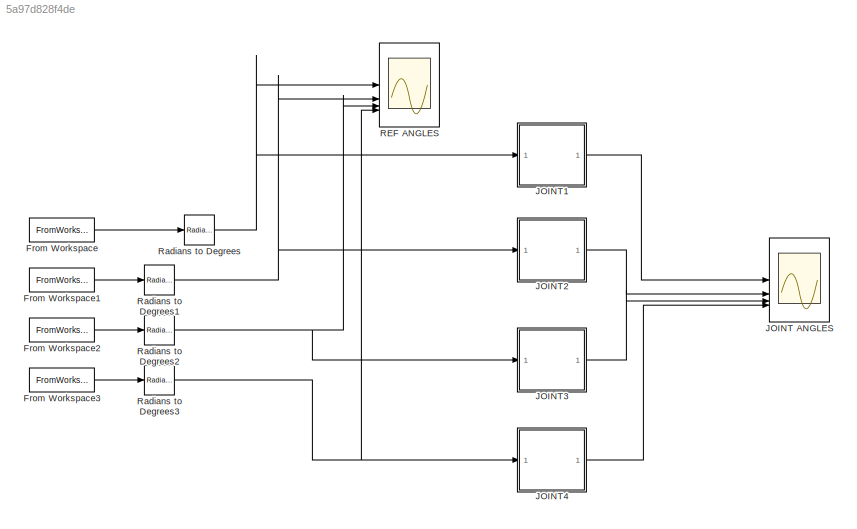
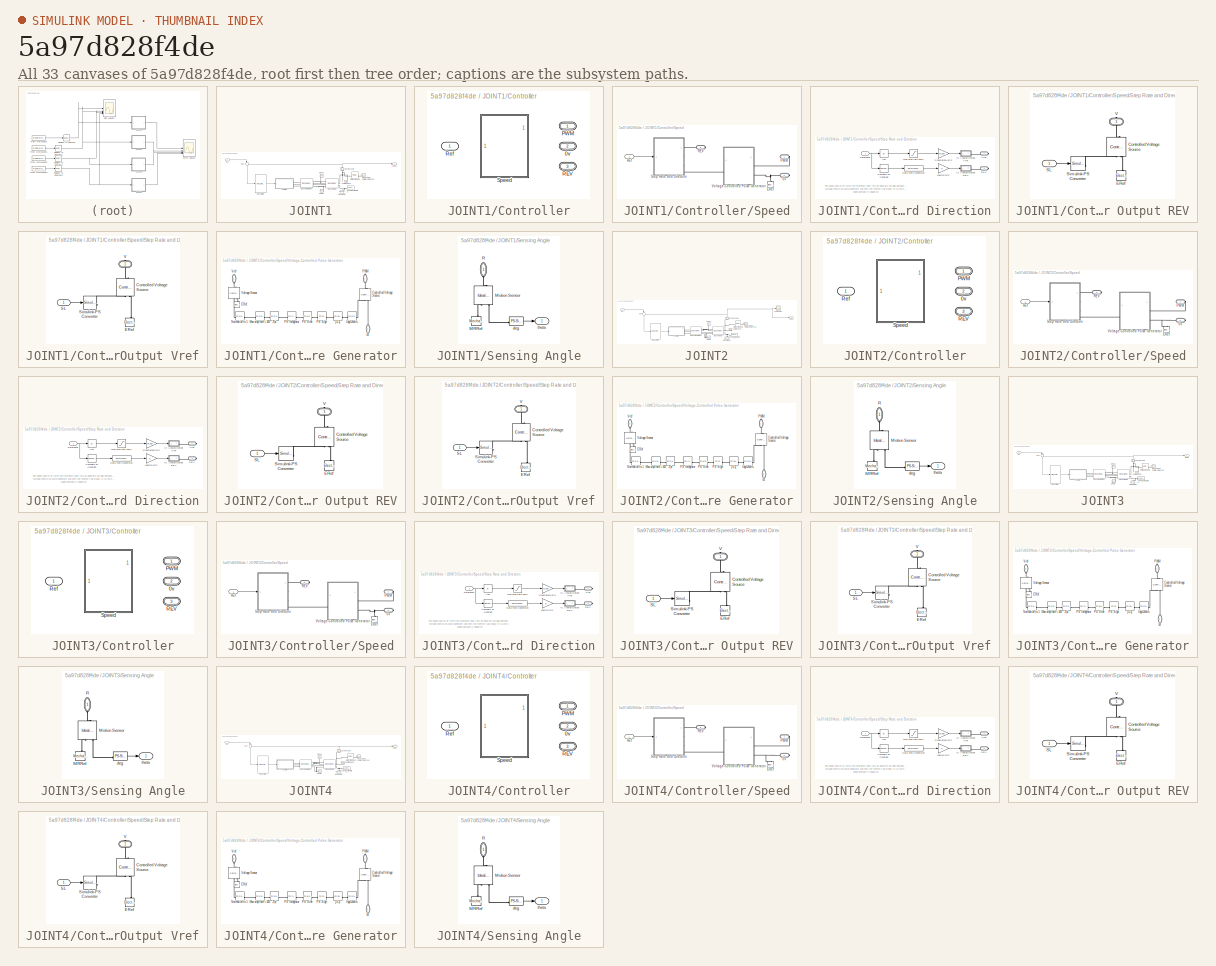
[diagram: thumbnail index - all 33 canvases of the model, root first then tree order]
MODEL slx_5a97d828f4de
KIND model
CONFIG AbsTol = auto
CONFIG EnableMultiTasking = off
CONFIG FixedStep = auto
CONFIG MaxStep = auto
CONFIG MinStep = auto
CONFIG RelTol = 1e-3
CONFIG SampleTimeConstraint = Unconstrained
CONFIG SolverName = VariableStepAuto
CONFIG StartTime = 0.0
CONFIG StopTime = 10.0
BLOCK [FromWorkspace] From Workspace
  VariableName = joint1
BLOCK [FromWorkspace] From Workspace1
  VariableName = joint2
BLOCK [FromWorkspace] From Workspace2
  VariableName = joint3
BLOCK [FromWorkspace] From Workspace3
  VariableName = joint4
BLOCK [Scope] JOINT ANGLES
  Floating = off
  NumInputPorts = 4
  ScopeSpecificationString = Simulink.scopes.TimeScopeBlockCfg('CurrentConfiguration', extmgr.ConfigurationSet(extmgr.Configuration('Core','General UI',true,'FigureColor',[1 1 1]),extmgr.Configuration('Core','Source UI',true),extmgr.Configuration('Sources','WiredSimulink',true,'DataLoggingVariableName','ScopeData1'),extmgr.Configuration('Visuals','Time Domain',true,'SerializedDisplays',{struct('MinYLimReal','-62.63569','MaxYL...<+4126ch>
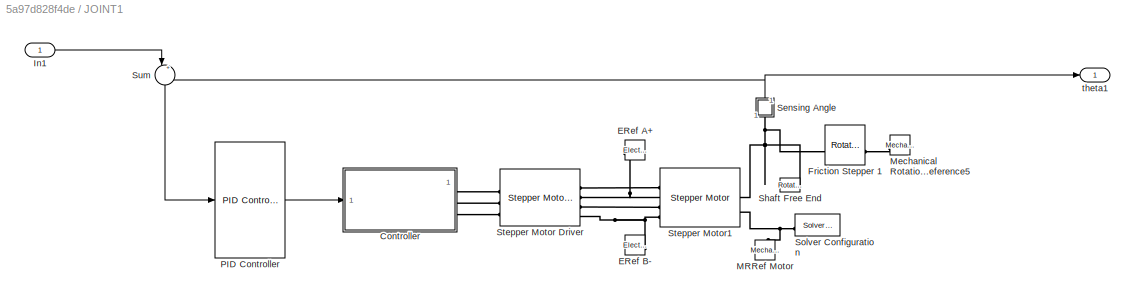
BLOCK [SubSystem] JOINT1
BLOCK [SubSystem] JOINT1/Controller
  AttributesFormatString = %<BlockChoice>
  LabelModeActiveChoice = Speed
  Variant = on
  VariantControlMode = label
BLOCK [PMIOPort] JOINT1/Controller/0v
  Port = 2
  Side = Right
BLOCK [PMIOPort] JOINT1/Controller/PWM
  Side = Right
BLOCK [PMIOPort] JOINT1/Controller/REV
  Port = 3
  Side = Right
BLOCK [Inport] JOINT1/Controller/Ref
BLOCK [SubSystem] JOINT1/Controller/Speed
  VariantControl = Speed
BLOCK [PMIOPort] JOINT1/Controller/Speed/0v
  Port = 2
  Side = Right
BLOCK [Reference] JOINT1/Controller/Speed/ERef  REF=fl_lib/Electrical/Electrical Elements/Electrical Reference
  NameLocation = right
  SourceBlock = fl_lib/Electrical/Electrical Elements/Electrical Reference
  SourceType = Electrical Reference
BLOCK [PMIOPort] JOINT1/Controller/Speed/PWM
  Side = Right
BLOCK [PMIOPort] JOINT1/Controller/Speed/REV
  Port = 3
  Side = Right
BLOCK [Inport] JOINT1/Controller/Speed/Ref
BLOCK [SubSystem] JOINT1/Controller/Speed/Step Rate and Direction
BLOCK [Abs] JOINT1/Controller/Speed/Step Rate and Direction/Abs
  SaturateOnIntegerOverflow = off
BLOCK [Reference] JOINT1/Controller/Speed/Step Rate and Direction/Compare To Constant  REF=simulink/Logic and Bit
Operations/Compare
To Constant
  SourceBlock = simulink/Logic and Bit\nOperations/Compare\nTo Constant
  SourceType = Compare To Constant
BLOCK [DataTypeConversion] JOINT1/Controller/Speed/Step Rate and Direction/Data Type Conversion
  RndMeth = Floor
  SaturateOnIntegerOverflow = off
BLOCK [SubSystem] JOINT1/Controller/Speed/Step Rate and Direction/IC Analog Output REV
BLOCK [Reference] JOINT1/Controller/Speed/Step Rate and Direction/IC Analog Output REV/Controlled Voltage Source  REF=fl_lib/Electrical/Electrical Sources/Controlled Voltage
Source
  NameLocation = right
  SourceBlock = fl_lib/Electrical/Electrical Sources/Controlled Voltage\nSource
  SourceType = Controlled Voltage\nSource
BLOCK [Reference] JOINT1/Controller/Speed/Step Rate and Direction/IC Analog Output REV/ERef  REF=fl_lib/Electrical/Electrical Elements/Electrical Reference
  NameLocation = right
  SourceBlock = fl_lib/Electrical/Electrical Elements/Electrical Reference
  SourceType = Electrical Reference
BLOCK [Inport] JOINT1/Controller/Speed/Step Rate and Direction/IC Analog Output REV/SL
BLOCK [Reference] JOINT1/Controller/Speed/Step Rate and Direction/IC Analog Output REV/Simulink-PS Converter  REF=nesl_utility/Simulink-PS
Converter
  SourceBlock = nesl_utility/Simulink-PS\nConverter
  SourceType = Simulink-PS\nConverter
BLOCK [PMIOPort] JOINT1/Controller/Speed/Step Rate and Direction/IC Analog Output REV/V
  NameLocation = right
  Side = Right
BLOCK [SubSystem] JOINT1/Controller/Speed/Step Rate and Direction/IC Analog Output Vref
BLOCK [Reference] JOINT1/Controller/Speed/Step Rate and Direction/IC Analog Output Vref/Controlled Voltage Source  REF=fl_lib/Electrical/Electrical Sources/Controlled Voltage
Source
  NameLocation = right
  SourceBlock = fl_lib/Electrical/Electrical Sources/Controlled Voltage\nSource
  SourceType = Controlled Voltage\nSource
BLOCK [Reference] JOINT1/Controller/Speed/Step Rate and Direction/IC Analog Output Vref/ERef  REF=fl_lib/Electrical/Electrical Elements/Electrical Reference
  NameLocation = right
  SourceBlock = fl_lib/Electrical/Electrical Elements/Electrical Reference
  SourceType = Electrical Reference
BLOCK [Inport] JOINT1/Controller/Speed/Step Rate and Direction/IC Analog Output Vref/SL
BLOCK [Reference] JOINT1/Controller/Speed/Step Rate and Direction/IC Analog Output Vref/Simulink-PS Converter  REF=nesl_utility/Simulink-PS
Converter
  SourceBlock = nesl_utility/Simulink-PS\nConverter
  SourceType = Simulink-PS\nConverter
BLOCK [PMIOPort] JOINT1/Controller/Speed/Step Rate and Direction/IC Analog Output Vref/V
  NameLocation = right
  Side = Right
BLOCK [Gain] JOINT1/Controller/Speed/Step Rate and Direction/Logic2Volts
  Gain = 5
BLOCK [Saturate] JOINT1/Controller/Speed/Step Rate and Direction/Max step rate 100//s
  LowerLimit = 0
  UpperLimit = 100
BLOCK [PMIOPort] JOINT1/Controller/Speed/Step Rate and Direction/REV
  Side = Right
BLOCK [Inport] JOINT1/Controller/Speed/Step Rate and Direction/Reference
  NameLocation = top
BLOCK [Gain] JOINT1/Controller/Speed/Step Rate and Direction/StepRate2Volts
  Gain = 5/100
BLOCK [PMIOPort] JOINT1/Controller/Speed/Step Rate and Direction/Vref
  Port = 2
  Side = Right
BLOCK [SubSystem] JOINT1/Controller/Speed/Voltage-Controlled Pulse Generator
BLOCK [PMIOPort] JOINT1/Controller/Speed/Voltage-Controlled Pulse Generator/0v
  NameLocation = left
  Port = 2
  Side = Right
BLOCK [Reference] JOINT1/Controller/Speed/Voltage-Controlled Pulse Generator/2*pi  REF=fl_ps_legacy_lib/Legacy Physical
Signals/Functions/PS Gain
  SourceBlock = fl_ps_legacy_lib/Legacy Physical\nSignals/Functions/PS Gain
  SourceType = PS Gain
BLOCK [Reference] JOINT1/Controller/Speed/Voltage-Controlled Pulse Generator/Controlled Voltage Source  REF=fl_lib/Electrical/Electrical Sources/Controlled Voltage
Source
  NameLocation = left
  SourceBlock = fl_lib/Electrical/Electrical Sources/Controlled Voltage\nSource
  SourceType = Controlled Voltage\nSource
BLOCK [Reference] JOINT1/Controller/Speed/Voltage-Controlled Pulse Generator/ERef  REF=fl_lib/Electrical/Electrical Elements/Electrical Reference
  NameLocation = right
  SourceBlock = fl_lib/Electrical/Electrical Elements/Electrical Reference
  SourceType = Electrical Reference
BLOCK [Reference] JOINT1/Controller/Speed/Voltage-Controlled Pulse Generator/Max step rate =100  REF=fl_ps_legacy_lib/Legacy Physical
Signals/Functions/PS Gain
  NameLocation = top
  SourceBlock = fl_ps_legacy_lib/Legacy Physical\nSignals/Functions/PS Gain
  SourceType = PS Gain
BLOCK [Reference] JOINT1/Controller/Speed/Voltage-Controlled Pulse Generator/Normalize to 1  REF=fl_ps_legacy_lib/Legacy Physical
Signals/Functions/PS Gain
  SourceBlock = fl_ps_legacy_lib/Legacy Physical\nSignals/Functions/PS Gain
  SourceType = PS Gain
BLOCK [Reference] JOINT1/Controller/Speed/Voltage-Controlled Pulse Generator/PS Integrator  REF=fl_ps_legacy_lib/Legacy Physical
Signals/Linear Operators/PS Integrator
  NameLocation = top
  SourceBlock = fl_ps_legacy_lib/Legacy Physical\nSignals/Linear Operators/PS Integrator
  SourceType = PS Integrator
BLOCK [Reference] JOINT1/Controller/Speed/Voltage-Controlled Pulse Generator/PS Sign  REF=fl_ps_legacy_lib/Legacy Physical
Signals/Nonlinear Operators/PS Sign
  SourceBlock = fl_ps_legacy_lib/Legacy Physical\nSignals/Nonlinear Operators/PS Sign
  SourceType = PS Sign
BLOCK [Reference] JOINT1/Controller/Speed/Voltage-Controlled Pulse Generator/PS Sine  REF=fl_ps_legacy_lib/Legacy Physical
Signals/Functions/PS Math Function
  SourceBlock = fl_ps_legacy_lib/Legacy Physical\nSignals/Functions/PS Math Function
  SourceType = PS Math Function
BLOCK [PMIOPort] JOINT1/Controller/Speed/Voltage-Controlled Pulse Generator/PWM
  NameLocation = left
  Side = Right
BLOCK [Reference] JOINT1/Controller/Speed/Voltage-Controlled Pulse Generator/Voltage Sensor  REF=fl_lib/Electrical/Electrical Sensors/Voltage Sensor
  NameLocation = right
  SourceBlock = fl_lib/Electrical/Electrical Sensors/Voltage Sensor
  SourceType = Voltage Sensor
BLOCK [PMIOPort] JOINT1/Controller/Speed/Voltage-Controlled Pulse Generator/Vref
  NameLocation = right
  Port = 3
  Side = Left
BLOCK [Reference] JOINT1/Controller/Speed/Voltage-Controlled Pulse Generator/[0,1]  REF=fl_ps_legacy_lib/Legacy Physical
Signals/Nonlinear Operators/PS Saturation
  SourceBlock = fl_ps_legacy_lib/Legacy Physical\nSignals/Nonlinear Operators/PS Saturation
  SourceType = PS Saturation
BLOCK [Reference] JOINT1/Controller/Speed/Voltage-Controlled Pulse Generator/logic2volts  REF=fl_ps_legacy_lib/Legacy Physical
Signals/Functions/PS Gain
  SourceBlock = fl_ps_legacy_lib/Legacy Physical\nSignals/Functions/PS Gain
  SourceType = PS Gain
BLOCK [Reference] JOINT1/ERef A+  REF=fl_lib/Electrical/Electrical Elements/Electrical Reference
  NameLocation = top
  SourceBlock = fl_lib/Electrical/Electrical Elements/Electrical Reference
  SourceType = Electrical Reference
BLOCK [Reference] JOINT1/ERef B-  REF=fl_lib/Electrical/Electrical Elements/Electrical Reference
  SourceBlock = fl_lib/Electrical/Electrical Elements/Electrical Reference
  SourceType = Electrical Reference
BLOCK [Reference] JOINT1/Friction Stepper 1  REF=fl_lib/Mechanical/Rotational Elements/Rotational Friction
  SourceBlock = fl_lib/Mechanical/Rotational Elements/Rotational Friction
  SourceType = Rotational Friction
BLOCK [Inport] JOINT1/In1
BLOCK [Reference] JOINT1/MRRef Motor  REF=fl_lib/Mechanical/Rotational Elements/Mechanical
Rotational Reference
  NameLocation = left
  SourceBlock = fl_lib/Mechanical/Rotational Elements/Mechanical\nRotational Reference
  SourceType = Mechanical\nRotational Reference
BLOCK [Reference] JOINT1/Mechanical Rotational Reference5  REF=fl_lib/Mechanical/Rotational Elements/Mechanical
Rotational Reference
  SourceBlock = fl_lib/Mechanical/Rotational Elements/Mechanical\nRotational Reference
  SourceType = Mechanical\nRotational Reference
BLOCK [Reference] JOINT1/PID Controller  REF=slpidlib/PID Controller
  SourceBlock = slpidlib/PID Controller
  SourceType = PID 1dof
BLOCK [SubSystem] JOINT1/Sensing Angle
  NameLocation = left
BLOCK [Reference] JOINT1/Sensing Angle/MRRef  REF=fl_lib/Mechanical/Rotational Elements/Mechanical
Rotational Reference
  NameLocation = left
  SourceBlock = fl_lib/Mechanical/Rotational Elements/Mechanical\nRotational Reference
  SourceType = Mechanical\nRotational Reference
BLOCK [Reference] JOINT1/Sensing Angle/Motion Sensor  REF=fl_lib/Mechanical/Mechanical Sensors/Ideal Rotational
Motion Sensor
  NameLocation = left
  SourceBlock = fl_lib/Mechanical/Mechanical Sensors/Ideal Rotational\nMotion Sensor
  SourceType = Ideal Rotational\nMotion Sensor
BLOCK [PMIOPort] JOINT1/Sensing Angle/R
  NameLocation = left
  Side = Left
BLOCK [Reference] JOINT1/Sensing Angle/deg  REF=nesl_utility/PS-Simulink
Converter
  SourceBlock = nesl_utility/PS-Simulink\nConverter
  SourceType = PS-Simulink\nConverter
BLOCK [Outport] JOINT1/Sensing Angle/theta
  VectorParamsAs1DForOutWhenUnconnected = off
BLOCK [Reference] JOINT1/Shaft Free End  REF=fl_lib/Mechanical/Rotational Elements/Rotational Free End
  SourceBlock = fl_lib/Mechanical/Rotational Elements/Rotational Free End
  SourceType = Rotational Free End
BLOCK [Reference] JOINT1/Solver Configuration  REF=nesl_utility/Solver
Configuration
  SourceBlock = nesl_utility/Solver\nConfiguration
  SourceType = Solver\nConfiguration
BLOCK [Reference] JOINT1/Stepper Motor Driver  REF=ee_lib/Electromechanical/Reluctance & Stepper/Stepper Motor Driver
  SourceBlock = ee_lib/Electromechanical/Reluctance & Stepper/Stepper Motor Driver
  SourceType = Stepper Motor Driver
BLOCK [Reference] JOINT1/Stepper Motor1  REF=ee_lib/Electromechanical/Reluctance & Stepper/Stepper Motor
  SourceBlock = ee_lib/Electromechanical/Reluctance & Stepper/Stepper Motor
  SourceType = Stepper Motor
BLOCK [Sum] JOINT1/Sum
  Inputs = |+-
  NameLocation = left
BLOCK [Outport] JOINT1/theta1
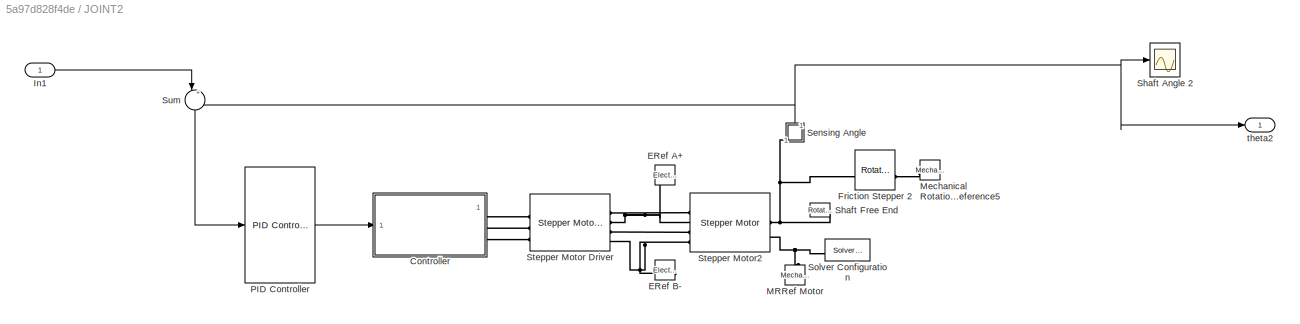
BLOCK [SubSystem] JOINT2
BLOCK [SubSystem] JOINT2/Controller
  AttributesFormatString = %<BlockChoice>
  LabelModeActiveChoice = Speed
  Variant = on
  VariantControlMode = label
BLOCK [PMIOPort] JOINT2/Controller/0v
  Port = 2
  Side = Right
BLOCK [PMIOPort] JOINT2/Controller/PWM
  Side = Right
BLOCK [PMIOPort] JOINT2/Controller/REV
  Port = 3
  Side = Right
BLOCK [Inport] JOINT2/Controller/Ref
BLOCK [SubSystem] JOINT2/Controller/Speed
  VariantControl = Speed
BLOCK [PMIOPort] JOINT2/Controller/Speed/0v
  Port = 2
  Side = Right
BLOCK [Reference] JOINT2/Controller/Speed/ERef  REF=fl_lib/Electrical/Electrical Elements/Electrical Reference
  NameLocation = right
  SourceBlock = fl_lib/Electrical/Electrical Elements/Electrical Reference
  SourceType = Electrical Reference
BLOCK [PMIOPort] JOINT2/Controller/Speed/PWM
  Side = Right
BLOCK [PMIOPort] JOINT2/Controller/Speed/REV
  Port = 3
  Side = Right
BLOCK [Inport] JOINT2/Controller/Speed/Ref
BLOCK [SubSystem] JOINT2/Controller/Speed/Step Rate and Direction
BLOCK [Abs] JOINT2/Controller/Speed/Step Rate and Direction/Abs
  SaturateOnIntegerOverflow = off
BLOCK [Reference] JOINT2/Controller/Speed/Step Rate and Direction/Compare To Constant  REF=simulink/Logic and Bit
Operations/Compare
To Constant
  SourceBlock = simulink/Logic and Bit\nOperations/Compare\nTo Constant
  SourceType = Compare To Constant
BLOCK [DataTypeConversion] JOINT2/Controller/Speed/Step Rate and Direction/Data Type Conversion
  RndMeth = Floor
  SaturateOnIntegerOverflow = off
BLOCK [SubSystem] JOINT2/Controller/Speed/Step Rate and Direction/IC Analog Output REV
BLOCK [Reference] JOINT2/Controller/Speed/Step Rate and Direction/IC Analog Output REV/Controlled Voltage Source  REF=fl_lib/Electrical/Electrical Sources/Controlled Voltage
Source
  NameLocation = right
  SourceBlock = fl_lib/Electrical/Electrical Sources/Controlled Voltage\nSource
  SourceType = Controlled Voltage\nSource
BLOCK [Reference] JOINT2/Controller/Speed/Step Rate and Direction/IC Analog Output REV/ERef  REF=fl_lib/Electrical/Electrical Elements/Electrical Reference
  NameLocation = right
  SourceBlock = fl_lib/Electrical/Electrical Elements/Electrical Reference
  SourceType = Electrical Reference
BLOCK [Inport] JOINT2/Controller/Speed/Step Rate and Direction/IC Analog Output REV/SL
BLOCK [Reference] JOINT2/Controller/Speed/Step Rate and Direction/IC Analog Output REV/Simulink-PS Converter  REF=nesl_utility/Simulink-PS
Converter
  SourceBlock = nesl_utility/Simulink-PS\nConverter
  SourceType = Simulink-PS\nConverter
BLOCK [PMIOPort] JOINT2/Controller/Speed/Step Rate and Direction/IC Analog Output REV/V
  NameLocation = right
  Side = Right
BLOCK [SubSystem] JOINT2/Controller/Speed/Step Rate and Direction/IC Analog Output Vref
BLOCK [Reference] JOINT2/Controller/Speed/Step Rate and Direction/IC Analog Output Vref/Controlled Voltage Source  REF=fl_lib/Electrical/Electrical Sources/Controlled Voltage
Source
  NameLocation = right
  SourceBlock = fl_lib/Electrical/Electrical Sources/Controlled Voltage\nSource
  SourceType = Controlled Voltage\nSource
BLOCK [Reference] JOINT2/Controller/Speed/Step Rate and Direction/IC Analog Output Vref/ERef  REF=fl_lib/Electrical/Electrical Elements/Electrical Reference
  NameLocation = right
  SourceBlock = fl_lib/Electrical/Electrical Elements/Electrical Reference
  SourceType = Electrical Reference
BLOCK [Inport] JOINT2/Controller/Speed/Step Rate and Direction/IC Analog Output Vref/SL
BLOCK [Reference] JOINT2/Controller/Speed/Step Rate and Direction/IC Analog Output Vref/Simulink-PS Converter  REF=nesl_utility/Simulink-PS
Converter
  SourceBlock = nesl_utility/Simulink-PS\nConverter
  SourceType = Simulink-PS\nConverter
BLOCK [PMIOPort] JOINT2/Controller/Speed/Step Rate and Direction/IC Analog Output Vref/V
  NameLocation = right
  Side = Right
BLOCK [Gain] JOINT2/Controller/Speed/Step Rate and Direction/Logic2Volts
  Gain = 5
BLOCK [Saturate] JOINT2/Controller/Speed/Step Rate and Direction/Max step rate 100//s
  LowerLimit = 0
  UpperLimit = 100
BLOCK [PMIOPort] JOINT2/Controller/Speed/Step Rate and Direction/REV
  Side = Right
BLOCK [Inport] JOINT2/Controller/Speed/Step Rate and Direction/Reference
  NameLocation = top
BLOCK [Gain] JOINT2/Controller/Speed/Step Rate and Direction/StepRate2Volts
  Gain = 5/100
BLOCK [PMIOPort] JOINT2/Controller/Speed/Step Rate and Direction/Vref
  Port = 2
  Side = Right
BLOCK [SubSystem] JOINT2/Controller/Speed/Voltage-Controlled Pulse Generator
BLOCK [PMIOPort] JOINT2/Controller/Speed/Voltage-Controlled Pulse Generator/0v
  NameLocation = left
  Port = 2
  Side = Right
BLOCK [Reference] JOINT2/Controller/Speed/Voltage-Controlled Pulse Generator/2*pi  REF=fl_ps_legacy_lib/Legacy Physical
Signals/Functions/PS Gain
  SourceBlock = fl_ps_legacy_lib/Legacy Physical\nSignals/Functions/PS Gain
  SourceType = PS Gain
BLOCK [Reference] JOINT2/Controller/Speed/Voltage-Controlled Pulse Generator/Controlled Voltage Source  REF=fl_lib/Electrical/Electrical Sources/Controlled Voltage
Source
  NameLocation = left
  SourceBlock = fl_lib/Electrical/Electrical Sources/Controlled Voltage\nSource
  SourceType = Controlled Voltage\nSource
BLOCK [Reference] JOINT2/Controller/Speed/Voltage-Controlled Pulse Generator/ERef  REF=fl_lib/Electrical/Electrical Elements/Electrical Reference
  NameLocation = right
  SourceBlock = fl_lib/Electrical/Electrical Elements/Electrical Reference
  SourceType = Electrical Reference
BLOCK [Reference] JOINT2/Controller/Speed/Voltage-Controlled Pulse Generator/Max step rate =100  REF=fl_ps_legacy_lib/Legacy Physical
Signals/Functions/PS Gain
  NameLocation = top
  SourceBlock = fl_ps_legacy_lib/Legacy Physical\nSignals/Functions/PS Gain
  SourceType = PS Gain
BLOCK [Reference] JOINT2/Controller/Speed/Voltage-Controlled Pulse Generator/Normalize to 1  REF=fl_ps_legacy_lib/Legacy Physical
Signals/Functions/PS Gain
  SourceBlock = fl_ps_legacy_lib/Legacy Physical\nSignals/Functions/PS Gain
  SourceType = PS Gain
BLOCK [Reference] JOINT2/Controller/Speed/Voltage-Controlled Pulse Generator/PS Integrator  REF=fl_ps_legacy_lib/Legacy Physical
Signals/Linear Operators/PS Integrator
  NameLocation = top
  SourceBlock = fl_ps_legacy_lib/Legacy Physical\nSignals/Linear Operators/PS Integrator
  SourceType = PS Integrator
BLOCK [Reference] JOINT2/Controller/Speed/Voltage-Controlled Pulse Generator/PS Sign  REF=fl_ps_legacy_lib/Legacy Physical
Signals/Nonlinear Operators/PS Sign
  SourceBlock = fl_ps_legacy_lib/Legacy Physical\nSignals/Nonlinear Operators/PS Sign
  SourceType = PS Sign
BLOCK [Reference] JOINT2/Controller/Speed/Voltage-Controlled Pulse Generator/PS Sine  REF=fl_ps_legacy_lib/Legacy Physical
Signals/Functions/PS Math Function
  SourceBlock = fl_ps_legacy_lib/Legacy Physical\nSignals/Functions/PS Math Function
  SourceType = PS Math Function
BLOCK [PMIOPort] JOINT2/Controller/Speed/Voltage-Controlled Pulse Generator/PWM
  NameLocation = left
  Side = Right
BLOCK [Reference] JOINT2/Controller/Speed/Voltage-Controlled Pulse Generator/Voltage Sensor  REF=fl_lib/Electrical/Electrical Sensors/Voltage Sensor
  NameLocation = right
  SourceBlock = fl_lib/Electrical/Electrical Sensors/Voltage Sensor
  SourceType = Voltage Sensor
BLOCK [PMIOPort] JOINT2/Controller/Speed/Voltage-Controlled Pulse Generator/Vref
  NameLocation = right
  Port = 3
  Side = Left
BLOCK [Reference] JOINT2/Controller/Speed/Voltage-Controlled Pulse Generator/[0,1]  REF=fl_ps_legacy_lib/Legacy Physical
Signals/Nonlinear Operators/PS Saturation
  SourceBlock = fl_ps_legacy_lib/Legacy Physical\nSignals/Nonlinear Operators/PS Saturation
  SourceType = PS Saturation
BLOCK [Reference] JOINT2/Controller/Speed/Voltage-Controlled Pulse Generator/logic2volts  REF=fl_ps_legacy_lib/Legacy Physical
Signals/Functions/PS Gain
  SourceBlock = fl_ps_legacy_lib/Legacy Physical\nSignals/Functions/PS Gain
  SourceType = PS Gain
BLOCK [Reference] JOINT2/ERef A+  REF=fl_lib/Electrical/Electrical Elements/Electrical Reference
  NameLocation = top
  SourceBlock = fl_lib/Electrical/Electrical Elements/Electrical Reference
  SourceType = Electrical Reference
BLOCK [Reference] JOINT2/ERef B-  REF=fl_lib/Electrical/Electrical Elements/Electrical Reference
  SourceBlock = fl_lib/Electrical/Electrical Elements/Electrical Reference
  SourceType = Electrical Reference
BLOCK [Reference] JOINT2/Friction Stepper 2  REF=fl_lib/Mechanical/Rotational Elements/Rotational Friction
  SourceBlock = fl_lib/Mechanical/Rotational Elements/Rotational Friction
  SourceType = Rotational Friction
BLOCK [Inport] JOINT2/In1
BLOCK [Reference] JOINT2/MRRef Motor  REF=fl_lib/Mechanical/Rotational Elements/Mechanical
Rotational Reference
  NameLocation = left
  SourceBlock = fl_lib/Mechanical/Rotational Elements/Mechanical\nRotational Reference
  SourceType = Mechanical\nRotational Reference
BLOCK [Reference] JOINT2/Mechanical Rotational Reference5  REF=fl_lib/Mechanical/Rotational Elements/Mechanical
Rotational Reference
  SourceBlock = fl_lib/Mechanical/Rotational Elements/Mechanical\nRotational Reference
  SourceType = Mechanical\nRotational Reference
BLOCK [Reference] JOINT2/PID Controller  REF=slpidlib/PID Controller
  SourceBlock = slpidlib/PID Controller
  SourceType = PID 1dof
BLOCK [SubSystem] JOINT2/Sensing Angle
  NameLocation = left
BLOCK [Reference] JOINT2/Sensing Angle/MRRef  REF=fl_lib/Mechanical/Rotational Elements/Mechanical
Rotational Reference
  NameLocation = left
  SourceBlock = fl_lib/Mechanical/Rotational Elements/Mechanical\nRotational Reference
  SourceType = Mechanical\nRotational Reference
BLOCK [Reference] JOINT2/Sensing Angle/Motion Sensor  REF=fl_lib/Mechanical/Mechanical Sensors/Ideal Rotational
Motion Sensor
  NameLocation = left
  SourceBlock = fl_lib/Mechanical/Mechanical Sensors/Ideal Rotational\nMotion Sensor
  SourceType = Ideal Rotational\nMotion Sensor
BLOCK [PMIOPort] JOINT2/Sensing Angle/R
  NameLocation = left
  Side = Left
BLOCK [Reference] JOINT2/Sensing Angle/deg  REF=nesl_utility/PS-Simulink
Converter
  SourceBlock = nesl_utility/PS-Simulink\nConverter
  SourceType = PS-Simulink\nConverter
BLOCK [Outport] JOINT2/Sensing Angle/theta
  VectorParamsAs1DForOutWhenUnconnected = off
BLOCK [Scope] JOINT2/Shaft Angle 2
  Floating = off
  NumInputPorts = 1
  ScopeSpecificationString = Simulink.scopes.TimeScopeBlockCfg('CurrentConfiguration', extmgr.ConfigurationSet(extmgr.Configuration('Core','General UI',true),extmgr.Configuration('Core','Source UI',true),extmgr.Configuration('Sources','WiredSimulink',true,'DataLogging',true,'DataLoggingSaveFormat','StructureWithTime','DataLoggingDecimation','1','DataLoggingDecimateData',true),extmgr.Configuration('Visuals','Time Domain',true,...<+2716ch>
BLOCK [Reference] JOINT2/Shaft Free End  REF=fl_lib/Mechanical/Rotational Elements/Rotational Free End
  SourceBlock = fl_lib/Mechanical/Rotational Elements/Rotational Free End
  SourceType = Rotational Free End
BLOCK [Reference] JOINT2/Solver Configuration  REF=nesl_utility/Solver
Configuration
  SourceBlock = nesl_utility/Solver\nConfiguration
  SourceType = Solver\nConfiguration
BLOCK [Reference] JOINT2/Stepper Motor Driver  REF=ee_lib/Electromechanical/Reluctance & Stepper/Stepper Motor Driver
  SourceBlock = ee_lib/Electromechanical/Reluctance & Stepper/Stepper Motor Driver
  SourceType = Stepper Motor Driver
BLOCK [Reference] JOINT2/Stepper Motor2  REF=ee_lib/Electromechanical/Reluctance & Stepper/Stepper Motor
  SourceBlock = ee_lib/Electromechanical/Reluctance & Stepper/Stepper Motor
  SourceType = Stepper Motor
BLOCK [Sum] JOINT2/Sum
  Inputs = |+-
  NameLocation = left
BLOCK [Outport] JOINT2/theta2
BLOCK [SubSystem] JOINT3
BLOCK [SubSystem] JOINT3/Controller
  AttributesFormatString = %<BlockChoice>
  LabelModeActiveChoice = Speed
  Variant = on
  VariantControlMode = label
BLOCK [PMIOPort] JOINT3/Controller/0v
  Port = 2
  Side = Right
BLOCK [PMIOPort] JOINT3/Controller/PWM
  Side = Right
BLOCK [PMIOPort] JOINT3/Controller/REV
  Port = 3
  Side = Right
BLOCK [Inport] JOINT3/Controller/Ref
BLOCK [SubSystem] JOINT3/Controller/Speed
  VariantControl = Speed
BLOCK [PMIOPort] JOINT3/Controller/Speed/0v
  Port = 2
  Side = Right
BLOCK [Reference] JOINT3/Controller/Speed/ERef  REF=fl_lib/Electrical/Electrical Elements/Electrical Reference
  NameLocation = right
  SourceBlock = fl_lib/Electrical/Electrical Elements/Electrical Reference
  SourceType = Electrical Reference
BLOCK [PMIOPort] JOINT3/Controller/Speed/PWM
  Side = Right
BLOCK [PMIOPort] JOINT3/Controller/Speed/REV
  Port = 3
  Side = Right
BLOCK [Inport] JOINT3/Controller/Speed/Ref
BLOCK [SubSystem] JOINT3/Controller/Speed/Step Rate and Direction
BLOCK [Abs] JOINT3/Controller/Speed/Step Rate and Direction/Abs
  SaturateOnIntegerOverflow = off
BLOCK [Reference] JOINT3/Controller/Speed/Step Rate and Direction/Compare To Constant  REF=simulink/Logic and Bit
Operations/Compare
To Constant
  SourceBlock = simulink/Logic and Bit\nOperations/Compare\nTo Constant
  SourceType = Compare To Constant
BLOCK [DataTypeConversion] JOINT3/Controller/Speed/Step Rate and Direction/Data Type Conversion
  RndMeth = Floor
  SaturateOnIntegerOverflow = off
BLOCK [SubSystem] JOINT3/Controller/Speed/Step Rate and Direction/IC Analog Output REV
BLOCK [Reference] JOINT3/Controller/Speed/Step Rate and Direction/IC Analog Output REV/Controlled Voltage Source  REF=fl_lib/Electrical/Electrical Sources/Controlled Voltage
Source
  NameLocation = right
  SourceBlock = fl_lib/Electrical/Electrical Sources/Controlled Voltage\nSource
  SourceType = Controlled Voltage\nSource
BLOCK [Reference] JOINT3/Controller/Speed/Step Rate and Direction/IC Analog Output REV/ERef  REF=fl_lib/Electrical/Electrical Elements/Electrical Reference
  NameLocation = right
  SourceBlock = fl_lib/Electrical/Electrical Elements/Electrical Reference
  SourceType = Electrical Reference
BLOCK [Inport] JOINT3/Controller/Speed/Step Rate and Direction/IC Analog Output REV/SL
BLOCK [Reference] JOINT3/Controller/Speed/Step Rate and Direction/IC Analog Output REV/Simulink-PS Converter  REF=nesl_utility/Simulink-PS
Converter
  SourceBlock = nesl_utility/Simulink-PS\nConverter
  SourceType = Simulink-PS\nConverter
BLOCK [PMIOPort] JOINT3/Controller/Speed/Step Rate and Direction/IC Analog Output REV/V
  NameLocation = right
  Side = Right
BLOCK [SubSystem] JOINT3/Controller/Speed/Step Rate and Direction/IC Analog Output Vref
BLOCK [Reference] JOINT3/Controller/Speed/Step Rate and Direction/IC Analog Output Vref/Controlled Voltage Source  REF=fl_lib/Electrical/Electrical Sources/Controlled Voltage
Source
  NameLocation = right
  SourceBlock = fl_lib/Electrical/Electrical Sources/Controlled Voltage\nSource
  SourceType = Controlled Voltage\nSource
BLOCK [Reference] JOINT3/Controller/Speed/Step Rate and Direction/IC Analog Output Vref/ERef  REF=fl_lib/Electrical/Electrical Elements/Electrical Reference
  NameLocation = right
  SourceBlock = fl_lib/Electrical/Electrical Elements/Electrical Reference
  SourceType = Electrical Reference
BLOCK [Inport] JOINT3/Controller/Speed/Step Rate and Direction/IC Analog Output Vref/SL
BLOCK [Reference] JOINT3/Controller/Speed/Step Rate and Direction/IC Analog Output Vref/Simulink-PS Converter  REF=nesl_utility/Simulink-PS
Converter
  SourceBlock = nesl_utility/Simulink-PS\nConverter
  SourceType = Simulink-PS\nConverter
BLOCK [PMIOPort] JOINT3/Controller/Speed/Step Rate and Direction/IC Analog Output Vref/V
  NameLocation = right
  Side = Right
BLOCK [Gain] JOINT3/Controller/Speed/Step Rate and Direction/Logic2Volts
  Gain = 5
BLOCK [Saturate] JOINT3/Controller/Speed/Step Rate and Direction/Max step rate 100//s
  LowerLimit = 0
  UpperLimit = 100
BLOCK [PMIOPort] JOINT3/Controller/Speed/Step Rate and Direction/REV
  Side = Right
BLOCK [Inport] JOINT3/Controller/Speed/Step Rate and Direction/Reference
  NameLocation = top
BLOCK [Gain] JOINT3/Controller/Speed/Step Rate and Direction/StepRate2Volts
  Gain = 5/100
BLOCK [PMIOPort] JOINT3/Controller/Speed/Step Rate and Direction/Vref
  Port = 2
  Side = Right
BLOCK [SubSystem] JOINT3/Controller/Speed/Voltage-Controlled Pulse Generator
BLOCK [PMIOPort] JOINT3/Controller/Speed/Voltage-Controlled Pulse Generator/0v
  NameLocation = left
  Port = 2
  Side = Right
BLOCK [Reference] JOINT3/Controller/Speed/Voltage-Controlled Pulse Generator/2*pi  REF=fl_ps_legacy_lib/Legacy Physical
Signals/Functions/PS Gain
  SourceBlock = fl_ps_legacy_lib/Legacy Physical\nSignals/Functions/PS Gain
  SourceType = PS Gain
BLOCK [Reference] JOINT3/Controller/Speed/Voltage-Controlled Pulse Generator/Controlled Voltage Source  REF=fl_lib/Electrical/Electrical Sources/Controlled Voltage
Source
  NameLocation = left
  SourceBlock = fl_lib/Electrical/Electrical Sources/Controlled Voltage\nSource
  SourceType = Controlled Voltage\nSource
BLOCK [Reference] JOINT3/Controller/Speed/Voltage-Controlled Pulse Generator/ERef  REF=fl_lib/Electrical/Electrical Elements/Electrical Reference
  NameLocation = right
  SourceBlock = fl_lib/Electrical/Electrical Elements/Electrical Reference
  SourceType = Electrical Reference
BLOCK [Reference] JOINT3/Controller/Speed/Voltage-Controlled Pulse Generator/Max step rate =100  REF=fl_ps_legacy_lib/Legacy Physical
Signals/Functions/PS Gain
  NameLocation = top
  SourceBlock = fl_ps_legacy_lib/Legacy Physical\nSignals/Functions/PS Gain
  SourceType = PS Gain
BLOCK [Reference] JOINT3/Controller/Speed/Voltage-Controlled Pulse Generator/Normalize to 1  REF=fl_ps_legacy_lib/Legacy Physical
Signals/Functions/PS Gain
  SourceBlock = fl_ps_legacy_lib/Legacy Physical\nSignals/Functions/PS Gain
  SourceType = PS Gain
BLOCK [Reference] JOINT3/Controller/Speed/Voltage-Controlled Pulse Generator/PS Integrator  REF=fl_ps_legacy_lib/Legacy Physical
Signals/Linear Operators/PS Integrator
  NameLocation = top
  SourceBlock = fl_ps_legacy_lib/Legacy Physical\nSignals/Linear Operators/PS Integrator
  SourceType = PS Integrator
BLOCK [Reference] JOINT3/Controller/Speed/Voltage-Controlled Pulse Generator/PS Sign  REF=fl_ps_legacy_lib/Legacy Physical
Signals/Nonlinear Operators/PS Sign
  SourceBlock = fl_ps_legacy_lib/Legacy Physical\nSignals/Nonlinear Operators/PS Sign
  SourceType = PS Sign
BLOCK [Reference] JOINT3/Controller/Speed/Voltage-Controlled Pulse Generator/PS Sine  REF=fl_ps_legacy_lib/Legacy Physical
Signals/Functions/PS Math Function
  SourceBlock = fl_ps_legacy_lib/Legacy Physical\nSignals/Functions/PS Math Function
  SourceType = PS Math Function
BLOCK [PMIOPort] JOINT3/Controller/Speed/Voltage-Controlled Pulse Generator/PWM
  NameLocation = left
  Side = Right
BLOCK [Reference] JOINT3/Controller/Speed/Voltage-Controlled Pulse Generator/Voltage Sensor  REF=fl_lib/Electrical/Electrical Sensors/Voltage Sensor
  NameLocation = right
  SourceBlock = fl_lib/Electrical/Electrical Sensors/Voltage Sensor
  SourceType = Voltage Sensor
BLOCK [PMIOPort] JOINT3/Controller/Speed/Voltage-Controlled Pulse Generator/Vref
  NameLocation = right
  Port = 3
  Side = Left
BLOCK [Reference] JOINT3/Controller/Speed/Voltage-Controlled Pulse Generator/[0,1]  REF=fl_ps_legacy_lib/Legacy Physical
Signals/Nonlinear Operators/PS Saturation
  SourceBlock = fl_ps_legacy_lib/Legacy Physical\nSignals/Nonlinear Operators/PS Saturation
  SourceType = PS Saturation
BLOCK [Reference] JOINT3/Controller/Speed/Voltage-Controlled Pulse Generator/logic2volts  REF=fl_ps_legacy_lib/Legacy Physical
Signals/Functions/PS Gain
  SourceBlock = fl_ps_legacy_lib/Legacy Physical\nSignals/Functions/PS Gain
  SourceType = PS Gain
BLOCK [Reference] JOINT3/ERef A+  REF=fl_lib/Electrical/Electrical Elements/Electrical Reference
  NameLocation = top
  SourceBlock = fl_lib/Electrical/Electrical Elements/Electrical Reference
  SourceType = Electrical Reference
BLOCK [Reference] JOINT3/ERef B-  REF=fl_lib/Electrical/Electrical Elements/Electrical Reference
  SourceBlock = fl_lib/Electrical/Electrical Elements/Electrical Reference
  SourceType = Electrical Reference
BLOCK [Reference] JOINT3/Friction Stepper 3  REF=fl_lib/Mechanical/Rotational Elements/Rotational Friction
  SourceBlock = fl_lib/Mechanical/Rotational Elements/Rotational Friction
  SourceType = Rotational Friction
BLOCK [Inport] JOINT3/In1
BLOCK [Reference] JOINT3/MRRef Motor  REF=fl_lib/Mechanical/Rotational Elements/Mechanical
Rotational Reference
  NameLocation = left
  SourceBlock = fl_lib/Mechanical/Rotational Elements/Mechanical\nRotational Reference
  SourceType = Mechanical\nRotational Reference
BLOCK [Reference] JOINT3/Mechanical Rotational Reference5  REF=fl_lib/Mechanical/Rotational Elements/Mechanical
Rotational Reference
  SourceBlock = fl_lib/Mechanical/Rotational Elements/Mechanical\nRotational Reference
  SourceType = Mechanical\nRotational Reference
BLOCK [Reference] JOINT3/PID Controller  REF=slpidlib/PID Controller
  SourceBlock = slpidlib/PID Controller
  SourceType = PID 1dof
BLOCK [SubSystem] JOINT3/Sensing Angle
  NameLocation = left
BLOCK [Reference] JOINT3/Sensing Angle/MRRef  REF=fl_lib/Mechanical/Rotational Elements/Mechanical
Rotational Reference
  NameLocation = left
  SourceBlock = fl_lib/Mechanical/Rotational Elements/Mechanical\nRotational Reference
  SourceType = Mechanical\nRotational Reference
BLOCK [Reference] JOINT3/Sensing Angle/Motion Sensor  REF=fl_lib/Mechanical/Mechanical Sensors/Ideal Rotational
Motion Sensor
  NameLocation = left
  SourceBlock = fl_lib/Mechanical/Mechanical Sensors/Ideal Rotational\nMotion Sensor
  SourceType = Ideal Rotational\nMotion Sensor
BLOCK [PMIOPort] JOINT3/Sensing Angle/R
  NameLocation = left
  Side = Left
BLOCK [Reference] JOINT3/Sensing Angle/deg  REF=nesl_utility/PS-Simulink
Converter
  SourceBlock = nesl_utility/PS-Simulink\nConverter
  SourceType = PS-Simulink\nConverter
BLOCK [Outport] JOINT3/Sensing Angle/theta
  VectorParamsAs1DForOutWhenUnconnected = off
BLOCK [Reference] JOINT3/Shaft Free End  REF=fl_lib/Mechanical/Rotational Elements/Rotational Free End
  SourceBlock = fl_lib/Mechanical/Rotational Elements/Rotational Free End
  SourceType = Rotational Free End
BLOCK [Reference] JOINT3/Solver Configuration  REF=nesl_utility/Solver
Configuration
  SourceBlock = nesl_utility/Solver\nConfiguration
  SourceType = Solver\nConfiguration
BLOCK [Reference] JOINT3/Stepper Motor Driver  REF=ee_lib/Electromechanical/Reluctance & Stepper/Stepper Motor Driver
  SourceBlock = ee_lib/Electromechanical/Reluctance & Stepper/Stepper Motor Driver
  SourceType = Stepper Motor Driver
BLOCK [Reference] JOINT3/Stepper Motor3  REF=ee_lib/Electromechanical/Reluctance & Stepper/Stepper Motor
  SourceBlock = ee_lib/Electromechanical/Reluctance & Stepper/Stepper Motor
  SourceType = Stepper Motor
BLOCK [Sum] JOINT3/Sum
  Inputs = |+-
  NameLocation = left
BLOCK [Outport] JOINT3/theta3
BLOCK [SubSystem] JOINT4
BLOCK [SubSystem] JOINT4/Controller
  AttributesFormatString = %<BlockChoice>
  LabelModeActiveChoice = Speed
  Variant = on
  VariantControlMode = label
BLOCK [PMIOPort] JOINT4/Controller/0v
  Port = 2
  Side = Right
BLOCK [PMIOPort] JOINT4/Controller/PWM
  Side = Right
BLOCK [PMIOPort] JOINT4/Controller/REV
  Port = 3
  Side = Right
BLOCK [Inport] JOINT4/Controller/Ref
BLOCK [SubSystem] JOINT4/Controller/Speed
  VariantControl = Speed
BLOCK [PMIOPort] JOINT4/Controller/Speed/0v
  Port = 2
  Side = Right
BLOCK [Reference] JOINT4/Controller/Speed/ERef  REF=fl_lib/Electrical/Electrical Elements/Electrical Reference
  NameLocation = right
  SourceBlock = fl_lib/Electrical/Electrical Elements/Electrical Reference
  SourceType = Electrical Reference
BLOCK [PMIOPort] JOINT4/Controller/Speed/PWM
  Side = Right
BLOCK [PMIOPort] JOINT4/Controller/Speed/REV
  Port = 3
  Side = Right
BLOCK [Inport] JOINT4/Controller/Speed/Ref
BLOCK [SubSystem] JOINT4/Controller/Speed/Step Rate and Direction
BLOCK [Abs] JOINT4/Controller/Speed/Step Rate and Direction/Abs
  SaturateOnIntegerOverflow = off
BLOCK [Reference] JOINT4/Controller/Speed/Step Rate and Direction/Compare To Constant  REF=simulink/Logic and Bit
Operations/Compare
To Constant
  SourceBlock = simulink/Logic and Bit\nOperations/Compare\nTo Constant
  SourceType = Compare To Constant
BLOCK [DataTypeConversion] JOINT4/Controller/Speed/Step Rate and Direction/Data Type Conversion
  RndMeth = Floor
  SaturateOnIntegerOverflow = off
BLOCK [SubSystem] JOINT4/Controller/Speed/Step Rate and Direction/IC Analog Output REV
BLOCK [Reference] JOINT4/Controller/Speed/Step Rate and Direction/IC Analog Output REV/Controlled Voltage Source  REF=fl_lib/Electrical/Electrical Sources/Controlled Voltage
Source
  NameLocation = right
  SourceBlock = fl_lib/Electrical/Electrical Sources/Controlled Voltage\nSource
  SourceType = Controlled Voltage\nSource
BLOCK [Reference] JOINT4/Controller/Speed/Step Rate and Direction/IC Analog Output REV/ERef  REF=fl_lib/Electrical/Electrical Elements/Electrical Reference
  NameLocation = right
  SourceBlock = fl_lib/Electrical/Electrical Elements/Electrical Reference
  SourceType = Electrical Reference
BLOCK [Inport] JOINT4/Controller/Speed/Step Rate and Direction/IC Analog Output REV/SL
BLOCK [Reference] JOINT4/Controller/Speed/Step Rate and Direction/IC Analog Output REV/Simulink-PS Converter  REF=nesl_utility/Simulink-PS
Converter
  SourceBlock = nesl_utility/Simulink-PS\nConverter
  SourceType = Simulink-PS\nConverter
BLOCK [PMIOPort] JOINT4/Controller/Speed/Step Rate and Direction/IC Analog Output REV/V
  NameLocation = right
  Side = Right
BLOCK [SubSystem] JOINT4/Controller/Speed/Step Rate and Direction/IC Analog Output Vref
BLOCK [Reference] JOINT4/Controller/Speed/Step Rate and Direction/IC Analog Output Vref/Controlled Voltage Source  REF=fl_lib/Electrical/Electrical Sources/Controlled Voltage
Source
  NameLocation = right
  SourceBlock = fl_lib/Electrical/Electrical Sources/Controlled Voltage\nSource
  SourceType = Controlled Voltage\nSource
BLOCK [Reference] JOINT4/Controller/Speed/Step Rate and Direction/IC Analog Output Vref/ERef  REF=fl_lib/Electrical/Electrical Elements/Electrical Reference
  NameLocation = right
  SourceBlock = fl_lib/Electrical/Electrical Elements/Electrical Reference
  SourceType = Electrical Reference
BLOCK [Inport] JOINT4/Controller/Speed/Step Rate and Direction/IC Analog Output Vref/SL
BLOCK [Reference] JOINT4/Controller/Speed/Step Rate and Direction/IC Analog Output Vref/Simulink-PS Converter  REF=nesl_utility/Simulink-PS
Converter
  SourceBlock = nesl_utility/Simulink-PS\nConverter
  SourceType = Simulink-PS\nConverter
BLOCK [PMIOPort] JOINT4/Controller/Speed/Step Rate and Direction/IC Analog Output Vref/V
  NameLocation = right
  Side = Right
BLOCK [Gain] JOINT4/Controller/Speed/Step Rate and Direction/Logic2Volts
  Gain = 5
BLOCK [Saturate] JOINT4/Controller/Speed/Step Rate and Direction/Max step rate 100//s
  LowerLimit = 0
  UpperLimit = 100
BLOCK [PMIOPort] JOINT4/Controller/Speed/Step Rate and Direction/REV
  Side = Right
BLOCK [Inport] JOINT4/Controller/Speed/Step Rate and Direction/Reference
  NameLocation = top
BLOCK [Gain] JOINT4/Controller/Speed/Step Rate and Direction/StepRate2Volts
  Gain = 5/100
BLOCK [PMIOPort] JOINT4/Controller/Speed/Step Rate and Direction/Vref
  Port = 2
  Side = Right
BLOCK [SubSystem] JOINT4/Controller/Speed/Voltage-Controlled Pulse Generator
BLOCK [PMIOPort] JOINT4/Controller/Speed/Voltage-Controlled Pulse Generator/0v
  NameLocation = left
  Port = 2
  Side = Right
BLOCK [Reference] JOINT4/Controller/Speed/Voltage-Controlled Pulse Generator/2*pi  REF=fl_ps_legacy_lib/Legacy Physical
Signals/Functions/PS Gain
  SourceBlock = fl_ps_legacy_lib/Legacy Physical\nSignals/Functions/PS Gain
  SourceType = PS Gain
BLOCK [Reference] JOINT4/Controller/Speed/Voltage-Controlled Pulse Generator/Controlled Voltage Source  REF=fl_lib/Electrical/Electrical Sources/Controlled Voltage
Source
  NameLocation = left
  SourceBlock = fl_lib/Electrical/Electrical Sources/Controlled Voltage\nSource
  SourceType = Controlled Voltage\nSource
BLOCK [Reference] JOINT4/Controller/Speed/Voltage-Controlled Pulse Generator/ERef  REF=fl_lib/Electrical/Electrical Elements/Electrical Reference
  NameLocation = right
  SourceBlock = fl_lib/Electrical/Electrical Elements/Electrical Reference
  SourceType = Electrical Reference
BLOCK [Reference] JOINT4/Controller/Speed/Voltage-Controlled Pulse Generator/Max step rate =100  REF=fl_ps_legacy_lib/Legacy Physical
Signals/Functions/PS Gain
  NameLocation = top
  SourceBlock = fl_ps_legacy_lib/Legacy Physical\nSignals/Functions/PS Gain
  SourceType = PS Gain
BLOCK [Reference] JOINT4/Controller/Speed/Voltage-Controlled Pulse Generator/Normalize to 1  REF=fl_ps_legacy_lib/Legacy Physical
Signals/Functions/PS Gain
  SourceBlock = fl_ps_legacy_lib/Legacy Physical\nSignals/Functions/PS Gain
  SourceType = PS Gain
BLOCK [Reference] JOINT4/Controller/Speed/Voltage-Controlled Pulse Generator/PS Integrator  REF=fl_ps_legacy_lib/Legacy Physical
Signals/Linear Operators/PS Integrator
  NameLocation = top
  SourceBlock = fl_ps_legacy_lib/Legacy Physical\nSignals/Linear Operators/PS Integrator
  SourceType = PS Integrator
BLOCK [Reference] JOINT4/Controller/Speed/Voltage-Controlled Pulse Generator/PS Sign  REF=fl_ps_legacy_lib/Legacy Physical
Signals/Nonlinear Operators/PS Sign
  SourceBlock = fl_ps_legacy_lib/Legacy Physical\nSignals/Nonlinear Operators/PS Sign
  SourceType = PS Sign
BLOCK [Reference] JOINT4/Controller/Speed/Voltage-Controlled Pulse Generator/PS Sine  REF=fl_ps_legacy_lib/Legacy Physical
Signals/Functions/PS Math Function
  SourceBlock = fl_ps_legacy_lib/Legacy Physical\nSignals/Functions/PS Math Function
  SourceType = PS Math Function
BLOCK [PMIOPort] JOINT4/Controller/Speed/Voltage-Controlled Pulse Generator/PWM
  NameLocation = left
  Side = Right
BLOCK [Reference] JOINT4/Controller/Speed/Voltage-Controlled Pulse Generator/Voltage Sensor  REF=fl_lib/Electrical/Electrical Sensors/Voltage Sensor
  NameLocation = right
  SourceBlock = fl_lib/Electrical/Electrical Sensors/Voltage Sensor
  SourceType = Voltage Sensor
BLOCK [PMIOPort] JOINT4/Controller/Speed/Voltage-Controlled Pulse Generator/Vref
  NameLocation = right
  Port = 3
  Side = Left
BLOCK [Reference] JOINT4/Controller/Speed/Voltage-Controlled Pulse Generator/[0,1]  REF=fl_ps_legacy_lib/Legacy Physical
Signals/Nonlinear Operators/PS Saturation
  SourceBlock = fl_ps_legacy_lib/Legacy Physical\nSignals/Nonlinear Operators/PS Saturation
  SourceType = PS Saturation
BLOCK [Reference] JOINT4/Controller/Speed/Voltage-Controlled Pulse Generator/logic2volts  REF=fl_ps_legacy_lib/Legacy Physical
Signals/Functions/PS Gain
  SourceBlock = fl_ps_legacy_lib/Legacy Physical\nSignals/Functions/PS Gain
  SourceType = PS Gain
BLOCK [Reference] JOINT4/ERef A+  REF=fl_lib/Electrical/Electrical Elements/Electrical Reference
  NameLocation = top
  SourceBlock = fl_lib/Electrical/Electrical Elements/Electrical Reference
  SourceType = Electrical Reference
BLOCK [Reference] JOINT4/ERef B-  REF=fl_lib/Electrical/Electrical Elements/Electrical Reference
  SourceBlock = fl_lib/Electrical/Electrical Elements/Electrical Reference
  SourceType = Electrical Reference
BLOCK [Reference] JOINT4/Friction Stepper 4  REF=fl_lib/Mechanical/Rotational Elements/Rotational Friction
  SourceBlock = fl_lib/Mechanical/Rotational Elements/Rotational Friction
  SourceType = Rotational Friction
BLOCK [Inport] JOINT4/In1
BLOCK [Reference] JOINT4/MRRef Motor  REF=fl_lib/Mechanical/Rotational Elements/Mechanical
Rotational Reference
  NameLocation = left
  SourceBlock = fl_lib/Mechanical/Rotational Elements/Mechanical\nRotational Reference
  SourceType = Mechanical\nRotational Reference
BLOCK [Reference] JOINT4/Mechanical Rotational Reference5  REF=fl_lib/Mechanical/Rotational Elements/Mechanical
Rotational Reference
  SourceBlock = fl_lib/Mechanical/Rotational Elements/Mechanical\nRotational Reference
  SourceType = Mechanical\nRotational Reference
BLOCK [Reference] JOINT4/PID Controller  REF=slpidlib/PID Controller
  SourceBlock = slpidlib/PID Controller
  SourceType = PID 1dof
BLOCK [SubSystem] JOINT4/Sensing Angle
  NameLocation = left
BLOCK [Reference] JOINT4/Sensing Angle/MRRef  REF=fl_lib/Mechanical/Rotational Elements/Mechanical
Rotational Reference
  NameLocation = left
  SourceBlock = fl_lib/Mechanical/Rotational Elements/Mechanical\nRotational Reference
  SourceType = Mechanical\nRotational Reference
BLOCK [Reference] JOINT4/Sensing Angle/Motion Sensor  REF=fl_lib/Mechanical/Mechanical Sensors/Ideal Rotational
Motion Sensor
  NameLocation = left
  SourceBlock = fl_lib/Mechanical/Mechanical Sensors/Ideal Rotational\nMotion Sensor
  SourceType = Ideal Rotational\nMotion Sensor
BLOCK [PMIOPort] JOINT4/Sensing Angle/R
  NameLocation = left
  Side = Left
BLOCK [Reference] JOINT4/Sensing Angle/deg  REF=nesl_utility/PS-Simulink
Converter
  SourceBlock = nesl_utility/PS-Simulink\nConverter
  SourceType = PS-Simulink\nConverter
BLOCK [Outport] JOINT4/Sensing Angle/theta
  VectorParamsAs1DForOutWhenUnconnected = off
BLOCK [Reference] JOINT4/Shaft Free End  REF=fl_lib/Mechanical/Rotational Elements/Rotational Free End
  SourceBlock = fl_lib/Mechanical/Rotational Elements/Rotational Free End
  SourceType = Rotational Free End
BLOCK [Reference] JOINT4/Solver Configuration  REF=nesl_utility/Solver
Configuration
  SourceBlock = nesl_utility/Solver\nConfiguration
  SourceType = Solver\nConfiguration
BLOCK [Reference] JOINT4/Stepper Motor Driver  REF=ee_lib/Electromechanical/Reluctance & Stepper/Stepper Motor Driver
  SourceBlock = ee_lib/Electromechanical/Reluctance & Stepper/Stepper Motor Driver
  SourceType = Stepper Motor Driver
BLOCK [Reference] JOINT4/Stepper Motor4  REF=ee_lib/Electromechanical/Reluctance & Stepper/Stepper Motor
  SourceBlock = ee_lib/Electromechanical/Reluctance & Stepper/Stepper Motor
  SourceType = Stepper Motor
BLOCK [Sum] JOINT4/Sum
  Inputs = |+-
  NameLocation = left
BLOCK [Outport] JOINT4/theta4
BLOCK [Scope] REF ANGLES
  Floating = off
  NumInputPorts = 4
  ScopeSpecificationString = Simulink.scopes.TimeScopeBlockCfg('CurrentConfiguration', extmgr.ConfigurationSet(extmgr.Configuration('Core','General UI',true),extmgr.Configuration('Core','Source UI',true),extmgr.Configuration('Sources','WiredSimulink',true,'DataLoggingVariableName','ScopeData2'),extmgr.Configuration('Visuals','Time Domain',true,'SerializedDisplays',{struct('MinYLimReal','-57.85538','MaxYLimReal','80.97886','YL...<+3526ch>
BLOCK [Reference] Radians to Degrees  REF=simulink_extras/Transformations/Radians
to Degrees
  SourceBlock = simulink_extras/Transformations/Radians\nto Degrees
  SourceType = RadiansToDegrees
BLOCK [Reference] Radians to Degrees1  REF=simulink_extras/Transformations/Radians
to Degrees
  SourceBlock = simulink_extras/Transformations/Radians\nto Degrees
  SourceType = RadiansToDegrees
BLOCK [Reference] Radians to Degrees2  REF=simulink_extras/Transformations/Radians
to Degrees
  SourceBlock = simulink_extras/Transformations/Radians\nto Degrees
  SourceType = RadiansToDegrees
BLOCK [Reference] Radians to Degrees3  REF=simulink_extras/Transformations/Radians
to Degrees
  SourceBlock = simulink_extras/Transformations/Radians\nto Degrees
  SourceType = RadiansToDegrees
ANNOTATION JOINT1/Controller/Speed/Step Rate and Direction: The speed controller turns the reference input into an absolute voltage demand for the voltage-controlled pulse generator and sets the reverse flag signal to +5 volts when the speed demand is negative.
ANNOTATION JOINT2/Controller/Speed/Step Rate and Direction: The speed controller turns the reference input into an absolute voltage demand for the voltage-controlled pulse generator and sets the reverse flag signal to +5 volts when the speed demand is negative.
ANNOTATION JOINT3/Controller/Speed/Step Rate and Direction: The speed controller turns the reference input into an absolute voltage demand for the voltage-controlled pulse generator and sets the reverse flag signal to +5 volts when the speed demand is negative.
ANNOTATION JOINT4/Controller/Speed/Step Rate and Direction: The speed controller turns the reference input into an absolute voltage demand for the voltage-controlled pulse generator and sets the reverse flag signal to +5 volts when the speed demand is negative.
LINE From Workspace1:1 -> Radians to Degrees1:1
LINE From Workspace2:1 -> Radians to Degrees2:1
LINE From Workspace3:1 -> Radians to Degrees3:1
LINE From Workspace:1 -> Radians to Degrees:1
LINE JOINT1/Controller/Speed/Ref:1 -> JOINT1/Controller/Speed/Step Rate and Direction:1
LINE JOINT1/Controller/Speed/Step Rate and Direction/Abs:1 -> JOINT1/Controller/Speed/Step Rate and Direction/Max step rate 100//s:1
LINE JOINT1/Controller/Speed/Step Rate and Direction/Compare To Constant:1 -> JOINT1/Controller/Speed/Step Rate and Direction/Data Type Conversion:1
LINE JOINT1/Controller/Speed/Step Rate and Direction/Data Type Conversion:1 -> JOINT1/Controller/Speed/Step Rate and Direction/Logic2Volts:1
LINE JOINT1/Controller/Speed/Step Rate and Direction/IC Analog Output REV/SL:1 -> JOINT1/Controller/Speed/Step Rate and Direction/IC Analog Output REV/Simulink-PS Converter:1
LINE JOINT1/Controller/Speed/Step Rate and Direction/IC Analog Output Vref/SL:1 -> JOINT1/Controller/Speed/Step Rate and Direction/IC Analog Output Vref/Simulink-PS Converter:1
LINE JOINT1/Controller/Speed/Step Rate and Direction/Logic2Volts:1 -> JOINT1/Controller/Speed/Step Rate and Direction/IC Analog Output REV:1
LINE JOINT1/Controller/Speed/Step Rate and Direction/Max step rate 100//s:1 -> JOINT1/Controller/Speed/Step Rate and Direction/StepRate2Volts:1
NET JOINT1/Controller/Speed/Step Rate and Direction/Reference:1 -> JOINT1/Controller/Speed/Step Rate and Direction/Abs:1, JOINT1/Controller/Speed/Step Rate and Direction/Compare To Constant:1
LINE JOINT1/Controller/Speed/Step Rate and Direction/StepRate2Volts:1 -> JOINT1/Controller/Speed/Step Rate and Direction/IC Analog Output Vref:1
LINE JOINT1/In1:1 -> JOINT1/Sum:1
LINE JOINT1/PID Controller:1 -> JOINT1/Controller:1
LINE JOINT1/Sensing Angle/deg:1 -> JOINT1/Sensing Angle/theta:1
NET JOINT1/Sensing Angle:1 -> JOINT1/Sum:2, JOINT1/theta1:1
LINE JOINT1/Sum:1 -> JOINT1/PID Controller:1
LINE JOINT1:1 -> JOINT ANGLES:1
LINE JOINT2/Controller/Speed/Ref:1 -> JOINT2/Controller/Speed/Step Rate and Direction:1
LINE JOINT2/Controller/Speed/Step Rate and Direction/Abs:1 -> JOINT2/Controller/Speed/Step Rate and Direction/Max step rate 100//s:1
LINE JOINT2/Controller/Speed/Step Rate and Direction/Compare To Constant:1 -> JOINT2/Controller/Speed/Step Rate and Direction/Data Type Conversion:1
LINE JOINT2/Controller/Speed/Step Rate and Direction/Data Type Conversion:1 -> JOINT2/Controller/Speed/Step Rate and Direction/Logic2Volts:1
LINE JOINT2/Controller/Speed/Step Rate and Direction/IC Analog Output REV/SL:1 -> JOINT2/Controller/Speed/Step Rate and Direction/IC Analog Output REV/Simulink-PS Converter:1
LINE JOINT2/Controller/Speed/Step Rate and Direction/IC Analog Output Vref/SL:1 -> JOINT2/Controller/Speed/Step Rate and Direction/IC Analog Output Vref/Simulink-PS Converter:1
LINE JOINT2/Controller/Speed/Step Rate and Direction/Logic2Volts:1 -> JOINT2/Controller/Speed/Step Rate and Direction/IC Analog Output REV:1
LINE JOINT2/Controller/Speed/Step Rate and Direction/Max step rate 100//s:1 -> JOINT2/Controller/Speed/Step Rate and Direction/StepRate2Volts:1
NET JOINT2/Controller/Speed/Step Rate and Direction/Reference:1 -> JOINT2/Controller/Speed/Step Rate and Direction/Abs:1, JOINT2/Controller/Speed/Step Rate and Direction/Compare To Constant:1
LINE JOINT2/Controller/Speed/Step Rate and Direction/StepRate2Volts:1 -> JOINT2/Controller/Speed/Step Rate and Direction/IC Analog Output Vref:1
LINE JOINT2/In1:1 -> JOINT2/Sum:1
LINE JOINT2/PID Controller:1 -> JOINT2/Controller:1
LINE JOINT2/Sensing Angle/deg:1 -> JOINT2/Sensing Angle/theta:1
NET JOINT2/Sensing Angle:1 -> JOINT2/Shaft Angle 2:1, JOINT2/Sum:2, JOINT2/theta2:1
LINE JOINT2/Sum:1 -> JOINT2/PID Controller:1
LINE JOINT2:1 -> JOINT ANGLES:2
LINE JOINT3/Controller/Speed/Ref:1 -> JOINT3/Controller/Speed/Step Rate and Direction:1
LINE JOINT3/Controller/Speed/Step Rate and Direction/Abs:1 -> JOINT3/Controller/Speed/Step Rate and Direction/Max step rate 100//s:1
LINE JOINT3/Controller/Speed/Step Rate and Direction/Compare To Constant:1 -> JOINT3/Controller/Speed/Step Rate and Direction/Data Type Conversion:1
LINE JOINT3/Controller/Speed/Step Rate and Direction/Data Type Conversion:1 -> JOINT3/Controller/Speed/Step Rate and Direction/Logic2Volts:1
LINE JOINT3/Controller/Speed/Step Rate and Direction/IC Analog Output REV/SL:1 -> JOINT3/Controller/Speed/Step Rate and Direction/IC Analog Output REV/Simulink-PS Converter:1
LINE JOINT3/Controller/Speed/Step Rate and Direction/IC Analog Output Vref/SL:1 -> JOINT3/Controller/Speed/Step Rate and Direction/IC Analog Output Vref/Simulink-PS Converter:1
LINE JOINT3/Controller/Speed/Step Rate and Direction/Logic2Volts:1 -> JOINT3/Controller/Speed/Step Rate and Direction/IC Analog Output REV:1
LINE JOINT3/Controller/Speed/Step Rate and Direction/Max step rate 100//s:1 -> JOINT3/Controller/Speed/Step Rate and Direction/StepRate2Volts:1
NET JOINT3/Controller/Speed/Step Rate and Direction/Reference:1 -> JOINT3/Controller/Speed/Step Rate and Direction/Abs:1, JOINT3/Controller/Speed/Step Rate and Direction/Compare To Constant:1
LINE JOINT3/Controller/Speed/Step Rate and Direction/StepRate2Volts:1 -> JOINT3/Controller/Speed/Step Rate and Direction/IC Analog Output Vref:1
LINE JOINT3/In1:1 -> JOINT3/Sum:1
LINE JOINT3/PID Controller:1 -> JOINT3/Controller:1
LINE JOINT3/Sensing Angle/deg:1 -> JOINT3/Sensing Angle/theta:1
NET JOINT3/Sensing Angle:1 -> JOINT3/Sum:2, JOINT3/theta3:1
LINE JOINT3/Sum:1 -> JOINT3/PID Controller:1
LINE JOINT3:1 -> JOINT ANGLES:3
LINE JOINT4/Controller/Speed/Ref:1 -> JOINT4/Controller/Speed/Step Rate and Direction:1
LINE JOINT4/Controller/Speed/Step Rate and Direction/Abs:1 -> JOINT4/Controller/Speed/Step Rate and Direction/Max step rate 100//s:1
LINE JOINT4/Controller/Speed/Step Rate and Direction/Compare To Constant:1 -> JOINT4/Controller/Speed/Step Rate and Direction/Data Type Conversion:1
LINE JOINT4/Controller/Speed/Step Rate and Direction/Data Type Conversion:1 -> JOINT4/Controller/Speed/Step Rate and Direction/Logic2Volts:1
LINE JOINT4/Controller/Speed/Step Rate and Direction/IC Analog Output REV/SL:1 -> JOINT4/Controller/Speed/Step Rate and Direction/IC Analog Output REV/Simulink-PS Converter:1
LINE JOINT4/Controller/Speed/Step Rate and Direction/IC Analog Output Vref/SL:1 -> JOINT4/Controller/Speed/Step Rate and Direction/IC Analog Output Vref/Simulink-PS Converter:1
LINE JOINT4/Controller/Speed/Step Rate and Direction/Logic2Volts:1 -> JOINT4/Controller/Speed/Step Rate and Direction/IC Analog Output REV:1
LINE JOINT4/Controller/Speed/Step Rate and Direction/Max step rate 100//s:1 -> JOINT4/Controller/Speed/Step Rate and Direction/StepRate2Volts:1
NET JOINT4/Controller/Speed/Step Rate and Direction/Reference:1 -> JOINT4/Controller/Speed/Step Rate and Direction/Abs:1, JOINT4/Controller/Speed/Step Rate and Direction/Compare To Constant:1
LINE JOINT4/Controller/Speed/Step Rate and Direction/StepRate2Volts:1 -> JOINT4/Controller/Speed/Step Rate and Direction/IC Analog Output Vref:1
LINE JOINT4/In1:1 -> JOINT4/Sum:1
LINE JOINT4/PID Controller:1 -> JOINT4/Controller:1
LINE JOINT4/Sensing Angle/deg:1 -> JOINT4/Sensing Angle/theta:1
NET JOINT4/Sensing Angle:1 -> JOINT4/Sum:2, JOINT4/theta4:1
LINE JOINT4/Sum:1 -> JOINT4/PID Controller:1
LINE JOINT4:1 -> JOINT ANGLES:4
NET Radians to Degrees1:1 -> JOINT2:1, REF ANGLES:2
NET Radians to Degrees2:1 -> JOINT3:1, REF ANGLES:3
NET Radians to Degrees3:1 -> JOINT4:1, REF ANGLES:4
NET Radians to Degrees:1 -> JOINT1:1, REF ANGLES:1
PNET net1: JOINT1/Controller/Speed/0v:RConn1 -- JOINT1/Controller/Speed/ERef:LConn1 -- JOINT1/Controller/Speed/Voltage-Controlled Pulse Generator:RConn2
PLINE JOINT1/Controller/Speed/PWM:RConn1 -- JOINT1/Controller/Speed/Voltage-Controlled Pulse Generator:RConn1
PLINE JOINT1/Controller/Speed/REV:RConn1 -- JOINT1/Controller/Speed/Step Rate and Direction:RConn1
PLINE JOINT1/Controller/Speed/Step Rate and Direction/IC Analog Output REV/Controlled Voltage Source:LConn1 -- JOINT1/Controller/Speed/Step Rate and Direction/IC Analog Output REV/V:RConn1
PLINE JOINT1/Controller/Speed/Step Rate and Direction/IC Analog Output REV/Controlled Voltage Source:RConn1 -- JOINT1/Controller/Speed/Step Rate and Direction/IC Analog Output REV/Simulink-PS Converter:RConn1
PLINE JOINT1/Controller/Speed/Step Rate and Direction/IC Analog Output REV/Controlled Voltage Source:RConn2 -- JOINT1/Controller/Speed/Step Rate and Direction/IC Analog Output REV/ERef:LConn1
PLINE JOINT1/Controller/Speed/Step Rate and Direction/IC Analog Output REV:RConn1 -- JOINT1/Controller/Speed/Step Rate and Direction/REV:RConn1
PLINE JOINT1/Controller/Speed/Step Rate and Direction/IC Analog Output Vref/Controlled Voltage Source:LConn1 -- JOINT1/Controller/Speed/Step Rate and Direction/IC Analog Output Vref/V:RConn1
PLINE JOINT1/Controller/Speed/Step Rate and Direction/IC Analog Output Vref/Controlled Voltage Source:RConn1 -- JOINT1/Controller/Speed/Step Rate and Direction/IC Analog Output Vref/Simulink-PS Converter:RConn1
PLINE JOINT1/Controller/Speed/Step Rate and Direction/IC Analog Output Vref/Controlled Voltage Source:RConn2 -- JOINT1/Controller/Speed/Step Rate and Direction/IC Analog Output Vref/ERef:LConn1
PLINE JOINT1/Controller/Speed/Step Rate and Direction/IC Analog Output Vref:RConn1 -- JOINT1/Controller/Speed/Step Rate and Direction/Vref:RConn1
PLINE JOINT1/Controller/Speed/Step Rate and Direction:RConn2 -- JOINT1/Controller/Speed/Voltage-Controlled Pulse Generator:LConn1
PLINE JOINT1/Controller/Speed/Voltage-Controlled Pulse Generator/0v:RConn1 -- JOINT1/Controller/Speed/Voltage-Controlled Pulse Generator/Controlled Voltage Source:RConn2
PLINE JOINT1/Controller/Speed/Voltage-Controlled Pulse Generator/2*pi:LConn1 -- JOINT1/Controller/Speed/Voltage-Controlled Pulse Generator/Max step rate =100:RConn1
PLINE JOINT1/Controller/Speed/Voltage-Controlled Pulse Generator/2*pi:RConn1 -- JOINT1/Controller/Speed/Voltage-Controlled Pulse Generator/PS Integrator:LConn1
PLINE JOINT1/Controller/Speed/Voltage-Controlled Pulse Generator/Controlled Voltage Source:LConn1 -- JOINT1/Controller/Speed/Voltage-Controlled Pulse Generator/PWM:RConn1
PLINE JOINT1/Controller/Speed/Voltage-Controlled Pulse Generator/Controlled Voltage Source:RConn1 -- JOINT1/Controller/Speed/Voltage-Controlled Pulse Generator/logic2volts:RConn1
PLINE JOINT1/Controller/Speed/Voltage-Controlled Pulse Generator/ERef:LConn1 -- JOINT1/Controller/Speed/Voltage-Controlled Pulse Generator/Voltage Sensor:RConn2
PLINE JOINT1/Controller/Speed/Voltage-Controlled Pulse Generator/Max step rate =100:LConn1 -- JOINT1/Controller/Speed/Voltage-Controlled Pulse Generator/Normalize to 1:RConn1
PLINE JOINT1/Controller/Speed/Voltage-Controlled Pulse Generator/Normalize to 1:LConn1 -- JOINT1/Controller/Speed/Voltage-Controlled Pulse Generator/Voltage Sensor:RConn1
PLINE JOINT1/Controller/Speed/Voltage-Controlled Pulse Generator/PS Integrator:RConn1 -- JOINT1/Controller/Speed/Voltage-Controlled Pulse Generator/PS Sine:LConn1
PLINE JOINT1/Controller/Speed/Voltage-Controlled Pulse Generator/PS Sign:LConn1 -- JOINT1/Controller/Speed/Voltage-Controlled Pulse Generator/PS Sine:RConn1
PLINE JOINT1/Controller/Speed/Voltage-Controlled Pulse Generator/PS Sign:RConn1 -- JOINT1/Controller/Speed/Voltage-Controlled Pulse Generator/[0,1]:LConn1
PLINE JOINT1/Controller/Speed/Voltage-Controlled Pulse Generator/Voltage Sensor:LConn1 -- JOINT1/Controller/Speed/Voltage-Controlled Pulse Generator/Vref:RConn1
PLINE JOINT1/Controller/Speed/Voltage-Controlled Pulse Generator/[0,1]:RConn1 -- JOINT1/Controller/Speed/Voltage-Controlled Pulse Generator/logic2volts:LConn1
PLINE JOINT1/Controller:RConn1 -- JOINT1/Stepper Motor Driver:LConn1
PLINE JOINT1/Controller:RConn2 -- JOINT1/Stepper Motor Driver:LConn2
PLINE JOINT1/Controller:RConn3 -- JOINT1/Stepper Motor Driver:LConn3
PNET net2: JOINT1/ERef A+:LConn1 -- JOINT1/Stepper Motor Driver:RConn2 -- JOINT1/Stepper Motor1:LConn2
PNET net3: JOINT1/ERef B-:LConn1 -- JOINT1/Stepper Motor Driver:RConn4 -- JOINT1/Stepper Motor1:LConn4
PNET net4: JOINT1/Friction Stepper 1:LConn1 -- JOINT1/Sensing Angle:LConn1 -- JOINT1/Shaft Free End:LConn1 -- JOINT1/Stepper Motor1:RConn1
PLINE JOINT1/Friction Stepper 1:RConn1 -- JOINT1/Mechanical Rotational Reference5:LConn1
PNET net5: JOINT1/MRRef Motor:LConn1 -- JOINT1/Solver Configuration:RConn1 -- JOINT1/Stepper Motor1:RConn2
PLINE JOINT1/Sensing Angle/MRRef:LConn1 -- JOINT1/Sensing Angle/Motion Sensor:RConn1
PLINE JOINT1/Sensing Angle/Motion Sensor:LConn1 -- JOINT1/Sensing Angle/R:RConn1
PLINE JOINT1/Sensing Angle/Motion Sensor:RConn3 -- JOINT1/Sensing Angle/deg:LConn1
PLINE JOINT1/Stepper Motor Driver:RConn1 -- JOINT1/Stepper Motor1:LConn1
PLINE JOINT1/Stepper Motor Driver:RConn3 -- JOINT1/Stepper Motor1:LConn3
PNET net6: JOINT2/Controller/Speed/0v:RConn1 -- JOINT2/Controller/Speed/ERef:LConn1 -- JOINT2/Controller/Speed/Voltage-Controlled Pulse Generator:RConn2
PLINE JOINT2/Controller/Speed/PWM:RConn1 -- JOINT2/Controller/Speed/Voltage-Controlled Pulse Generator:RConn1
PLINE JOINT2/Controller/Speed/REV:RConn1 -- JOINT2/Controller/Speed/Step Rate and Direction:RConn1
PLINE JOINT2/Controller/Speed/Step Rate and Direction/IC Analog Output REV/Controlled Voltage Source:LConn1 -- JOINT2/Controller/Speed/Step Rate and Direction/IC Analog Output REV/V:RConn1
PLINE JOINT2/Controller/Speed/Step Rate and Direction/IC Analog Output REV/Controlled Voltage Source:RConn1 -- JOINT2/Controller/Speed/Step Rate and Direction/IC Analog Output REV/Simulink-PS Converter:RConn1
PLINE JOINT2/Controller/Speed/Step Rate and Direction/IC Analog Output REV/Controlled Voltage Source:RConn2 -- JOINT2/Controller/Speed/Step Rate and Direction/IC Analog Output REV/ERef:LConn1
PLINE JOINT2/Controller/Speed/Step Rate and Direction/IC Analog Output REV:RConn1 -- JOINT2/Controller/Speed/Step Rate and Direction/REV:RConn1
PLINE JOINT2/Controller/Speed/Step Rate and Direction/IC Analog Output Vref/Controlled Voltage Source:LConn1 -- JOINT2/Controller/Speed/Step Rate and Direction/IC Analog Output Vref/V:RConn1
PLINE JOINT2/Controller/Speed/Step Rate and Direction/IC Analog Output Vref/Controlled Voltage Source:RConn1 -- JOINT2/Controller/Speed/Step Rate and Direction/IC Analog Output Vref/Simulink-PS Converter:RConn1
PLINE JOINT2/Controller/Speed/Step Rate and Direction/IC Analog Output Vref/Controlled Voltage Source:RConn2 -- JOINT2/Controller/Speed/Step Rate and Direction/IC Analog Output Vref/ERef:LConn1
PLINE JOINT2/Controller/Speed/Step Rate and Direction/IC Analog Output Vref:RConn1 -- JOINT2/Controller/Speed/Step Rate and Direction/Vref:RConn1
PLINE JOINT2/Controller/Speed/Step Rate and Direction:RConn2 -- JOINT2/Controller/Speed/Voltage-Controlled Pulse Generator:LConn1
PLINE JOINT2/Controller/Speed/Voltage-Controlled Pulse Generator/0v:RConn1 -- JOINT2/Controller/Speed/Voltage-Controlled Pulse Generator/Controlled Voltage Source:RConn2
PLINE JOINT2/Controller/Speed/Voltage-Controlled Pulse Generator/2*pi:LConn1 -- JOINT2/Controller/Speed/Voltage-Controlled Pulse Generator/Max step rate =100:RConn1
PLINE JOINT2/Controller/Speed/Voltage-Controlled Pulse Generator/2*pi:RConn1 -- JOINT2/Controller/Speed/Voltage-Controlled Pulse Generator/PS Integrator:LConn1
PLINE JOINT2/Controller/Speed/Voltage-Controlled Pulse Generator/Controlled Voltage Source:LConn1 -- JOINT2/Controller/Speed/Voltage-Controlled Pulse Generator/PWM:RConn1
PLINE JOINT2/Controller/Speed/Voltage-Controlled Pulse Generator/Controlled Voltage Source:RConn1 -- JOINT2/Controller/Speed/Voltage-Controlled Pulse Generator/logic2volts:RConn1
PLINE JOINT2/Controller/Speed/Voltage-Controlled Pulse Generator/ERef:LConn1 -- JOINT2/Controller/Speed/Voltage-Controlled Pulse Generator/Voltage Sensor:RConn2
PLINE JOINT2/Controller/Speed/Voltage-Controlled Pulse Generator/Max step rate =100:LConn1 -- JOINT2/Controller/Speed/Voltage-Controlled Pulse Generator/Normalize to 1:RConn1
PLINE JOINT2/Controller/Speed/Voltage-Controlled Pulse Generator/Normalize to 1:LConn1 -- JOINT2/Controller/Speed/Voltage-Controlled Pulse Generator/Voltage Sensor:RConn1
PLINE JOINT2/Controller/Speed/Voltage-Controlled Pulse Generator/PS Integrator:RConn1 -- JOINT2/Controller/Speed/Voltage-Controlled Pulse Generator/PS Sine:LConn1
PLINE JOINT2/Controller/Speed/Voltage-Controlled Pulse Generator/PS Sign:LConn1 -- JOINT2/Controller/Speed/Voltage-Controlled Pulse Generator/PS Sine:RConn1
PLINE JOINT2/Controller/Speed/Voltage-Controlled Pulse Generator/PS Sign:RConn1 -- JOINT2/Controller/Speed/Voltage-Controlled Pulse Generator/[0,1]:LConn1
PLINE JOINT2/Controller/Speed/Voltage-Controlled Pulse Generator/Voltage Sensor:LConn1 -- JOINT2/Controller/Speed/Voltage-Controlled Pulse Generator/Vref:RConn1
PLINE JOINT2/Controller/Speed/Voltage-Controlled Pulse Generator/[0,1]:RConn1 -- JOINT2/Controller/Speed/Voltage-Controlled Pulse Generator/logic2volts:LConn1
PLINE JOINT2/Controller:RConn1 -- JOINT2/Stepper Motor Driver:LConn1
PLINE JOINT2/Controller:RConn2 -- JOINT2/Stepper Motor Driver:LConn2
PLINE JOINT2/Controller:RConn3 -- JOINT2/Stepper Motor Driver:LConn3
PNET net7: JOINT2/ERef A+:LConn1 -- JOINT2/Stepper Motor Driver:RConn2 -- JOINT2/Stepper Motor2:LConn2
PNET net8: JOINT2/ERef B-:LConn1 -- JOINT2/Stepper Motor Driver:RConn4 -- JOINT2/Stepper Motor2:LConn4
PNET net9: JOINT2/Friction Stepper 2:LConn1 -- JOINT2/Sensing Angle:LConn1 -- JOINT2/Shaft Free End:LConn1 -- JOINT2/Stepper Motor2:RConn1
PLINE JOINT2/Friction Stepper 2:RConn1 -- JOINT2/Mechanical Rotational Reference5:LConn1
PNET net10: JOINT2/MRRef Motor:LConn1 -- JOINT2/Solver Configuration:RConn1 -- JOINT2/Stepper Motor2:RConn2
PLINE JOINT2/Sensing Angle/MRRef:LConn1 -- JOINT2/Sensing Angle/Motion Sensor:RConn1
PLINE JOINT2/Sensing Angle/Motion Sensor:LConn1 -- JOINT2/Sensing Angle/R:RConn1
PLINE JOINT2/Sensing Angle/Motion Sensor:RConn3 -- JOINT2/Sensing Angle/deg:LConn1
PLINE JOINT2/Stepper Motor Driver:RConn1 -- JOINT2/Stepper Motor2:LConn1
PLINE JOINT2/Stepper Motor Driver:RConn3 -- JOINT2/Stepper Motor2:LConn3
PNET net11: JOINT3/Controller/Speed/0v:RConn1 -- JOINT3/Controller/Speed/ERef:LConn1 -- JOINT3/Controller/Speed/Voltage-Controlled Pulse Generator:RConn2
PLINE JOINT3/Controller/Speed/PWM:RConn1 -- JOINT3/Controller/Speed/Voltage-Controlled Pulse Generator:RConn1
PLINE JOINT3/Controller/Speed/REV:RConn1 -- JOINT3/Controller/Speed/Step Rate and Direction:RConn1
PLINE JOINT3/Controller/Speed/Step Rate and Direction/IC Analog Output REV/Controlled Voltage Source:LConn1 -- JOINT3/Controller/Speed/Step Rate and Direction/IC Analog Output REV/V:RConn1
PLINE JOINT3/Controller/Speed/Step Rate and Direction/IC Analog Output REV/Controlled Voltage Source:RConn1 -- JOINT3/Controller/Speed/Step Rate and Direction/IC Analog Output REV/Simulink-PS Converter:RConn1
PLINE JOINT3/Controller/Speed/Step Rate and Direction/IC Analog Output REV/Controlled Voltage Source:RConn2 -- JOINT3/Controller/Speed/Step Rate and Direction/IC Analog Output REV/ERef:LConn1
PLINE JOINT3/Controller/Speed/Step Rate and Direction/IC Analog Output REV:RConn1 -- JOINT3/Controller/Speed/Step Rate and Direction/REV:RConn1
PLINE JOINT3/Controller/Speed/Step Rate and Direction/IC Analog Output Vref/Controlled Voltage Source:LConn1 -- JOINT3/Controller/Speed/Step Rate and Direction/IC Analog Output Vref/V:RConn1
PLINE JOINT3/Controller/Speed/Step Rate and Direction/IC Analog Output Vref/Controlled Voltage Source:RConn1 -- JOINT3/Controller/Speed/Step Rate and Direction/IC Analog Output Vref/Simulink-PS Converter:RConn1
PLINE JOINT3/Controller/Speed/Step Rate and Direction/IC Analog Output Vref/Controlled Voltage Source:RConn2 -- JOINT3/Controller/Speed/Step Rate and Direction/IC Analog Output Vref/ERef:LConn1
PLINE JOINT3/Controller/Speed/Step Rate and Direction/IC Analog Output Vref:RConn1 -- JOINT3/Controller/Speed/Step Rate and Direction/Vref:RConn1
PLINE JOINT3/Controller/Speed/Step Rate and Direction:RConn2 -- JOINT3/Controller/Speed/Voltage-Controlled Pulse Generator:LConn1
PLINE JOINT3/Controller/Speed/Voltage-Controlled Pulse Generator/0v:RConn1 -- JOINT3/Controller/Speed/Voltage-Controlled Pulse Generator/Controlled Voltage Source:RConn2
PLINE JOINT3/Controller/Speed/Voltage-Controlled Pulse Generator/2*pi:LConn1 -- JOINT3/Controller/Speed/Voltage-Controlled Pulse Generator/Max step rate =100:RConn1
PLINE JOINT3/Controller/Speed/Voltage-Controlled Pulse Generator/2*pi:RConn1 -- JOINT3/Controller/Speed/Voltage-Controlled Pulse Generator/PS Integrator:LConn1
PLINE JOINT3/Controller/Speed/Voltage-Controlled Pulse Generator/Controlled Voltage Source:LConn1 -- JOINT3/Controller/Speed/Voltage-Controlled Pulse Generator/PWM:RConn1
PLINE JOINT3/Controller/Speed/Voltage-Controlled Pulse Generator/Controlled Voltage Source:RConn1 -- JOINT3/Controller/Speed/Voltage-Controlled Pulse Generator/logic2volts:RConn1
PLINE JOINT3/Controller/Speed/Voltage-Controlled Pulse Generator/ERef:LConn1 -- JOINT3/Controller/Speed/Voltage-Controlled Pulse Generator/Voltage Sensor:RConn2
PLINE JOINT3/Controller/Speed/Voltage-Controlled Pulse Generator/Max step rate =100:LConn1 -- JOINT3/Controller/Speed/Voltage-Controlled Pulse Generator/Normalize to 1:RConn1
PLINE JOINT3/Controller/Speed/Voltage-Controlled Pulse Generator/Normalize to 1:LConn1 -- JOINT3/Controller/Speed/Voltage-Controlled Pulse Generator/Voltage Sensor:RConn1
PLINE JOINT3/Controller/Speed/Voltage-Controlled Pulse Generator/PS Integrator:RConn1 -- JOINT3/Controller/Speed/Voltage-Controlled Pulse Generator/PS Sine:LConn1
PLINE JOINT3/Controller/Speed/Voltage-Controlled Pulse Generator/PS Sign:LConn1 -- JOINT3/Controller/Speed/Voltage-Controlled Pulse Generator/PS Sine:RConn1
PLINE JOINT3/Controller/Speed/Voltage-Controlled Pulse Generator/PS Sign:RConn1 -- JOINT3/Controller/Speed/Voltage-Controlled Pulse Generator/[0,1]:LConn1
PLINE JOINT3/Controller/Speed/Voltage-Controlled Pulse Generator/Voltage Sensor:LConn1 -- JOINT3/Controller/Speed/Voltage-Controlled Pulse Generator/Vref:RConn1
PLINE JOINT3/Controller/Speed/Voltage-Controlled Pulse Generator/[0,1]:RConn1 -- JOINT3/Controller/Speed/Voltage-Controlled Pulse Generator/logic2volts:LConn1
PLINE JOINT3/Controller:RConn1 -- JOINT3/Stepper Motor Driver:LConn1
PLINE JOINT3/Controller:RConn2 -- JOINT3/Stepper Motor Driver:LConn2
PLINE JOINT3/Controller:RConn3 -- JOINT3/Stepper Motor Driver:LConn3
PNET net12: JOINT3/ERef A+:LConn1 -- JOINT3/Stepper Motor Driver:RConn2 -- JOINT3/Stepper Motor3:LConn2
PNET net13: JOINT3/ERef B-:LConn1 -- JOINT3/Stepper Motor Driver:RConn4 -- JOINT3/Stepper Motor3:LConn4
PNET net14: JOINT3/Friction Stepper 3:LConn1 -- JOINT3/Sensing Angle:LConn1 -- JOINT3/Shaft Free End:LConn1 -- JOINT3/Stepper Motor3:RConn1
PLINE JOINT3/Friction Stepper 3:RConn1 -- JOINT3/Mechanical Rotational Reference5:LConn1
PNET net15: JOINT3/MRRef Motor:LConn1 -- JOINT3/Solver Configuration:RConn1 -- JOINT3/Stepper Motor3:RConn2
PLINE JOINT3/Sensing Angle/MRRef:LConn1 -- JOINT3/Sensing Angle/Motion Sensor:RConn1
PLINE JOINT3/Sensing Angle/Motion Sensor:LConn1 -- JOINT3/Sensing Angle/R:RConn1
PLINE JOINT3/Sensing Angle/Motion Sensor:RConn3 -- JOINT3/Sensing Angle/deg:LConn1
PLINE JOINT3/Stepper Motor Driver:RConn1 -- JOINT3/Stepper Motor3:LConn1
PLINE JOINT3/Stepper Motor Driver:RConn3 -- JOINT3/Stepper Motor3:LConn3
PNET net16: JOINT4/Controller/Speed/0v:RConn1 -- JOINT4/Controller/Speed/ERef:LConn1 -- JOINT4/Controller/Speed/Voltage-Controlled Pulse Generator:RConn2
PLINE JOINT4/Controller/Speed/PWM:RConn1 -- JOINT4/Controller/Speed/Voltage-Controlled Pulse Generator:RConn1
PLINE JOINT4/Controller/Speed/REV:RConn1 -- JOINT4/Controller/Speed/Step Rate and Direction:RConn1
PLINE JOINT4/Controller/Speed/Step Rate and Direction/IC Analog Output REV/Controlled Voltage Source:LConn1 -- JOINT4/Controller/Speed/Step Rate and Direction/IC Analog Output REV/V:RConn1
PLINE JOINT4/Controller/Speed/Step Rate and Direction/IC Analog Output REV/Controlled Voltage Source:RConn1 -- JOINT4/Controller/Speed/Step Rate and Direction/IC Analog Output REV/Simulink-PS Converter:RConn1
PLINE JOINT4/Controller/Speed/Step Rate and Direction/IC Analog Output REV/Controlled Voltage Source:RConn2 -- JOINT4/Controller/Speed/Step Rate and Direction/IC Analog Output REV/ERef:LConn1
PLINE JOINT4/Controller/Speed/Step Rate and Direction/IC Analog Output REV:RConn1 -- JOINT4/Controller/Speed/Step Rate and Direction/REV:RConn1
PLINE JOINT4/Controller/Speed/Step Rate and Direction/IC Analog Output Vref/Controlled Voltage Source:LConn1 -- JOINT4/Controller/Speed/Step Rate and Direction/IC Analog Output Vref/V:RConn1
PLINE JOINT4/Controller/Speed/Step Rate and Direction/IC Analog Output Vref/Controlled Voltage Source:RConn1 -- JOINT4/Controller/Speed/Step Rate and Direction/IC Analog Output Vref/Simulink-PS Converter:RConn1
PLINE JOINT4/Controller/Speed/Step Rate and Direction/IC Analog Output Vref/Controlled Voltage Source:RConn2 -- JOINT4/Controller/Speed/Step Rate and Direction/IC Analog Output Vref/ERef:LConn1
PLINE JOINT4/Controller/Speed/Step Rate and Direction/IC Analog Output Vref:RConn1 -- JOINT4/Controller/Speed/Step Rate and Direction/Vref:RConn1
PLINE JOINT4/Controller/Speed/Step Rate and Direction:RConn2 -- JOINT4/Controller/Speed/Voltage-Controlled Pulse Generator:LConn1
PLINE JOINT4/Controller/Speed/Voltage-Controlled Pulse Generator/0v:RConn1 -- JOINT4/Controller/Speed/Voltage-Controlled Pulse Generator/Controlled Voltage Source:RConn2
PLINE JOINT4/Controller/Speed/Voltage-Controlled Pulse Generator/2*pi:LConn1 -- JOINT4/Controller/Speed/Voltage-Controlled Pulse Generator/Max step rate =100:RConn1
PLINE JOINT4/Controller/Speed/Voltage-Controlled Pulse Generator/2*pi:RConn1 -- JOINT4/Controller/Speed/Voltage-Controlled Pulse Generator/PS Integrator:LConn1
PLINE JOINT4/Controller/Speed/Voltage-Controlled Pulse Generator/Controlled Voltage Source:LConn1 -- JOINT4/Controller/Speed/Voltage-Controlled Pulse Generator/PWM:RConn1
PLINE JOINT4/Controller/Speed/Voltage-Controlled Pulse Generator/Controlled Voltage Source:RConn1 -- JOINT4/Controller/Speed/Voltage-Controlled Pulse Generator/logic2volts:RConn1
PLINE JOINT4/Controller/Speed/Voltage-Controlled Pulse Generator/ERef:LConn1 -- JOINT4/Controller/Speed/Voltage-Controlled Pulse Generator/Voltage Sensor:RConn2
PLINE JOINT4/Controller/Speed/Voltage-Controlled Pulse Generator/Max step rate =100:LConn1 -- JOINT4/Controller/Speed/Voltage-Controlled Pulse Generator/Normalize to 1:RConn1
PLINE JOINT4/Controller/Speed/Voltage-Controlled Pulse Generator/Normalize to 1:LConn1 -- JOINT4/Controller/Speed/Voltage-Controlled Pulse Generator/Voltage Sensor:RConn1
PLINE JOINT4/Controller/Speed/Voltage-Controlled Pulse Generator/PS Integrator:RConn1 -- JOINT4/Controller/Speed/Voltage-Controlled Pulse Generator/PS Sine:LConn1
PLINE JOINT4/Controller/Speed/Voltage-Controlled Pulse Generator/PS Sign:LConn1 -- JOINT4/Controller/Speed/Voltage-Controlled Pulse Generator/PS Sine:RConn1
PLINE JOINT4/Controller/Speed/Voltage-Controlled Pulse Generator/PS Sign:RConn1 -- JOINT4/Controller/Speed/Voltage-Controlled Pulse Generator/[0,1]:LConn1
PLINE JOINT4/Controller/Speed/Voltage-Controlled Pulse Generator/Voltage Sensor:LConn1 -- JOINT4/Controller/Speed/Voltage-Controlled Pulse Generator/Vref:RConn1
PLINE JOINT4/Controller/Speed/Voltage-Controlled Pulse Generator/[0,1]:RConn1 -- JOINT4/Controller/Speed/Voltage-Controlled Pulse Generator/logic2volts:LConn1
PLINE JOINT4/Controller:RConn1 -- JOINT4/Stepper Motor Driver:LConn1
PLINE JOINT4/Controller:RConn2 -- JOINT4/Stepper Motor Driver:LConn2
PLINE JOINT4/Controller:RConn3 -- JOINT4/Stepper Motor Driver:LConn3
PNET net17: JOINT4/ERef A+:LConn1 -- JOINT4/Stepper Motor Driver:RConn2 -- JOINT4/Stepper Motor4:LConn2
PNET net18: JOINT4/ERef B-:LConn1 -- JOINT4/Stepper Motor Driver:RConn4 -- JOINT4/Stepper Motor4:LConn4
PNET net19: JOINT4/Friction Stepper 4:LConn1 -- JOINT4/Sensing Angle:LConn1 -- JOINT4/Shaft Free End:LConn1 -- JOINT4/Stepper Motor4:RConn1
PLINE JOINT4/Friction Stepper 4:RConn1 -- JOINT4/Mechanical Rotational Reference5:LConn1
PNET net20: JOINT4/MRRef Motor:LConn1 -- JOINT4/Solver Configuration:RConn1 -- JOINT4/Stepper Motor4:RConn2
PLINE JOINT4/Sensing Angle/MRRef:LConn1 -- JOINT4/Sensing Angle/Motion Sensor:RConn1
PLINE JOINT4/Sensing Angle/Motion Sensor:LConn1 -- JOINT4/Sensing Angle/R:RConn1
PLINE JOINT4/Sensing Angle/Motion Sensor:RConn3 -- JOINT4/Sensing Angle/deg:LConn1
PLINE JOINT4/Stepper Motor Driver:RConn1 -- JOINT4/Stepper Motor4:LConn1
PLINE JOINT4/Stepper Motor Driver:RConn3 -- JOINT4/Stepper Motor4:LConn3
note: NET lines group one-source signal fan-out (src -> all destinations, sorted); 1:1 wires keep LINE; PNET lines group multi-terminal physical nets as a canonical sorted terminal list (undirected conserving connections); 2-terminal nets keep the pairwise PLINE form
